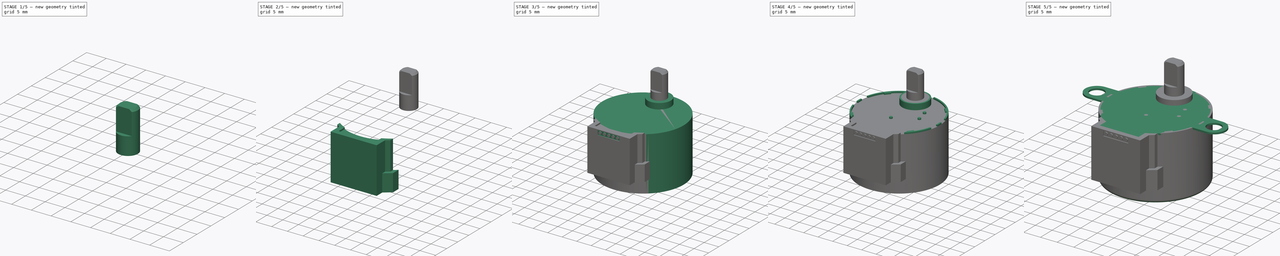
[diagram: build sequence overview — one tinted view per stage of 5, left to right]
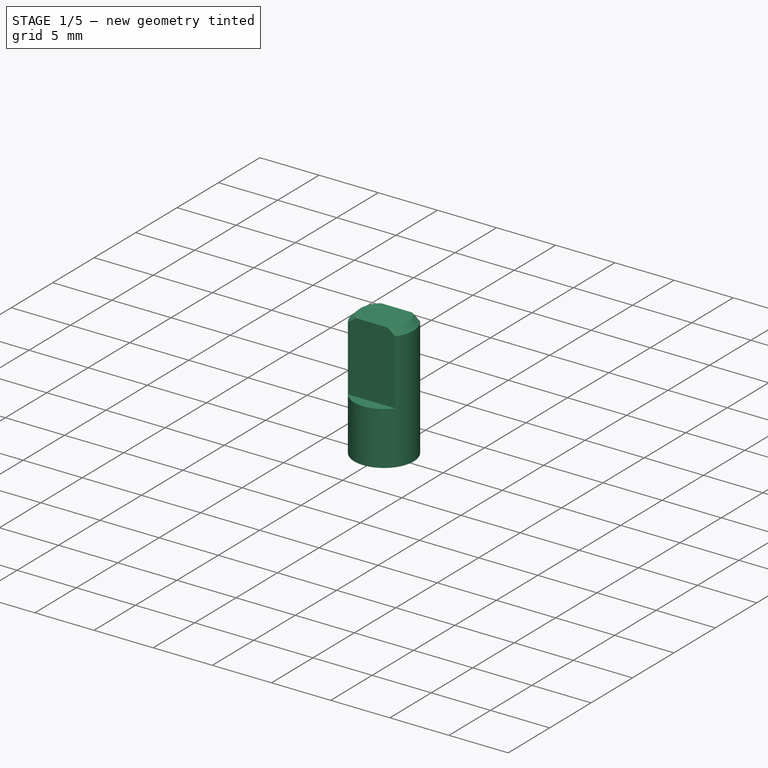
[diagram: stage 1 of 5 — iso view after this stage's code; geometry added in this stage tinted green]
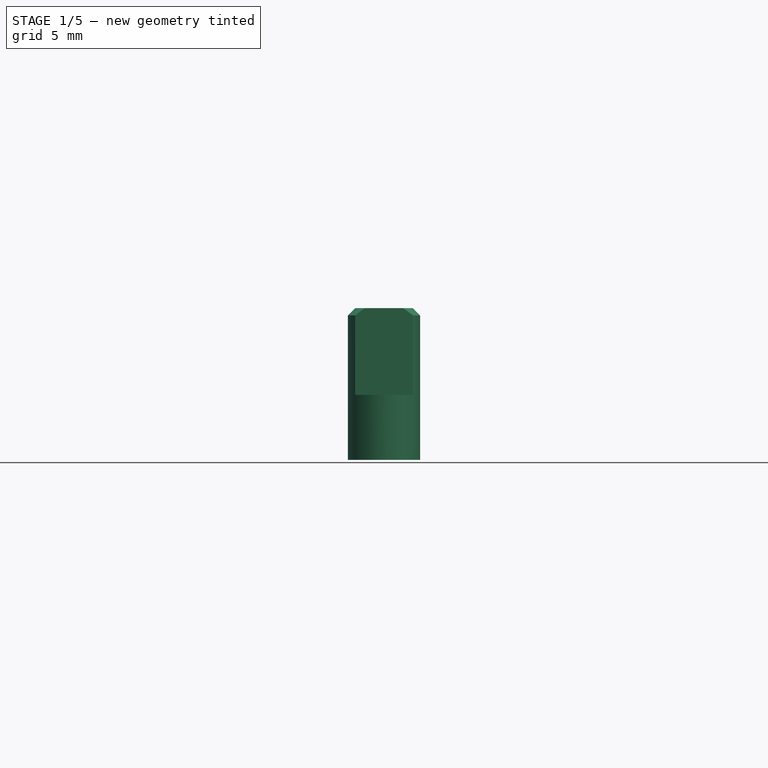
[diagram: stage 1 of 5 — front view after this stage's code; geometry added in this stage tinted green]
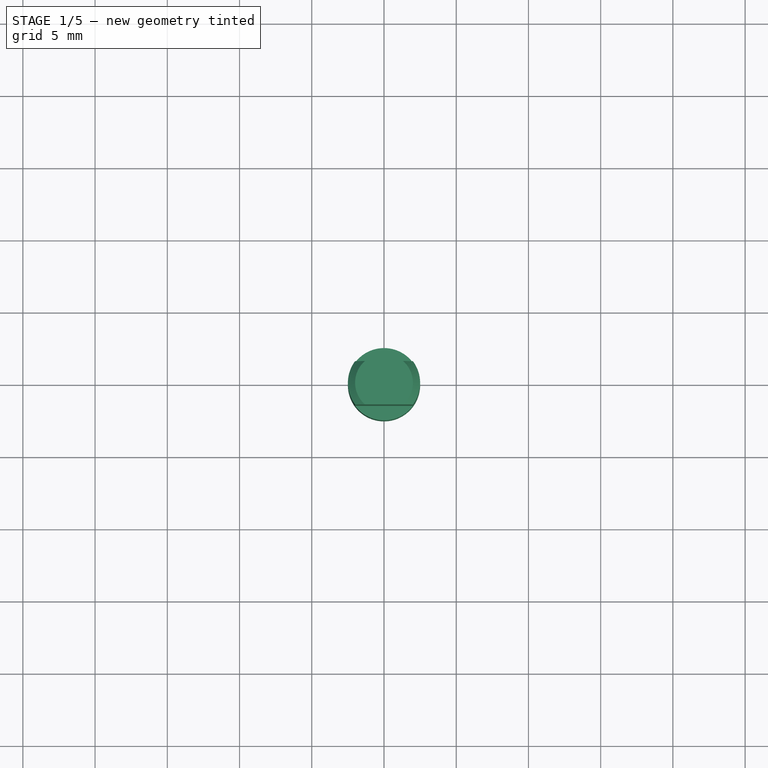
[diagram: stage 1 of 5 — top view after this stage's code; geometry added in this stage tinted green]
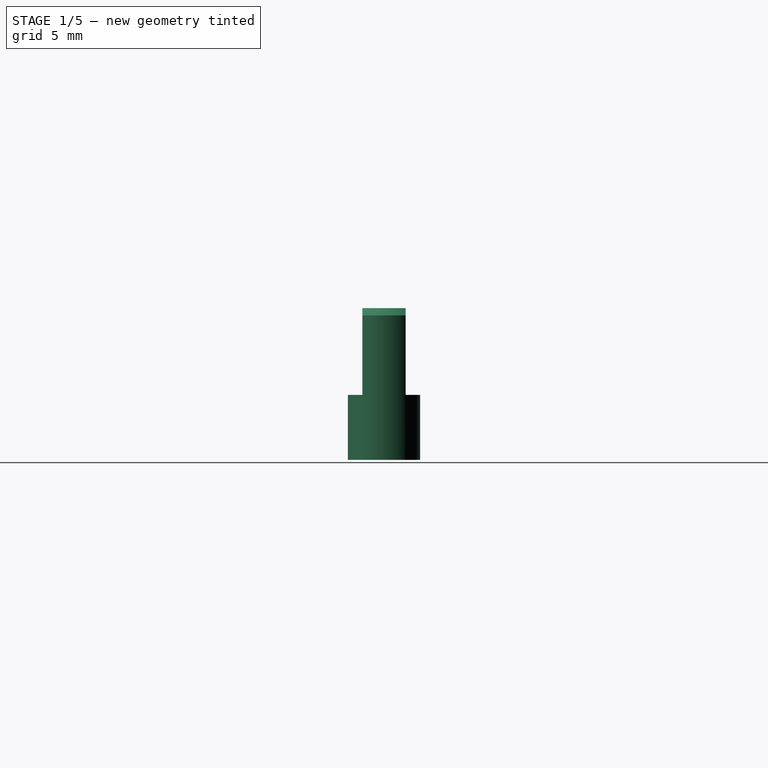
[diagram: stage 1 of 5 — right view after this stage's code; geometry added in this stage tinted green]
FCSTD DOCUMENT  (FreeCAD 0.20R27936 (Git))
Label: 28BYJ-48
License: All rights reserved
LicenseURL: http://en.wikipedia.org/wiki/All_rights_reserved
objects: Sketcher::SketchObject×13, PartDesign::Pad×8, Part::Part2DObjectPython×5, PartDesign::Body×5, PartDesign::Pocket×4, PartDesign::Fillet×1, PartDesign::Chamfer×1, Part::MultiFuse×1
note: 52 computed .brp shape members not serialized (recipe doc carries the construction recipe); baked Part::Feature solids carry a one-line shape summary decoded from their .brp

FEATURE [PartDesign::Body] Body003  label="Part 4"
  Group = -> [Clone2D003,Sketch008,Pad006,Sketch009,Pad007,Sketch010,Pocket001,Sketch011,Pocket002]
  Origin = -> Origin003
  Tip = -> Pocket002
FEATURE [Part::Part2DObjectPython] Clone2D004  label="Master Sketch (2D)004"  # Draft 2D object (typed FeaturePython)
  Fuse = false
  Objects = -> [Sketch]
  Scale = (1,1,1)
FEATURE [Sketcher::SketchObject] Sketch012
  ExternalGeometry = -> [Clone2D004]
  FullyConstrained = true
  MapMode = 5
  Support = -> [XY_Plane004]
  sketch-geometry (1):
    g0: Circle CenterX=0 CenterY=0 CenterZ=0 NormalX=0 NormalY=0 NormalZ=1 AngleXU=0 Radius=2.5
  constraints (2):
    c: Coincident(g0,g-3)
    c: Equal(g-3,g0)
FEATURE [PartDesign::Pad] Pad008
  Direction = (0,0,1)
  Length = 10.5
  Length2 = 10
  Profile = -> Sketch012
  ReferenceAxis = -> Sketch012 [N_Axis]
  Type = 0
FEATURE [Sketcher::SketchObject] Sketch013
  ExternalGeometry = -> [Pad008]
  FullyConstrained = true
  MapMode = 5
  Placement = pos=(0,0,10.5) rot=(0,0,1;0rad)
  Support = -> [Pad008]
  sketch-geometry (4):
    g0: LineSegment StartX=-2 StartY=1.5 StartZ=0 EndX=2 EndY=1.5 EndZ=0
    g1: LineSegment StartX=-2 StartY=-1.5 StartZ=0 EndX=2 EndY=-1.5 EndZ=0
    g2: ArcOfCircle CenterX=0 CenterY=0 CenterZ=0 NormalX=0 NormalY=0 NormalZ=1 AngleXU=0 Radius=2.5 StartAngle=0.643501 EndAngle=2.49809
    g3: ArcOfCircle CenterX=0 CenterY=0 CenterZ=0 NormalX=0 NormalY=0 NormalZ=1 AngleXU=0 Radius=2.5 StartAngle=3.78509 EndAngle=5.63968
  constraints (12):
    c: PointOnObject(g0,g-3)
    c: Horizontal(g0)
    c: PointOnObject(g1,g-3)
    c: Horizontal(g1)
    c: Equal(g1,g0)
    c: Coincident(g2,g-3)
    c: Coincident(g2,g0)
    c: Coincident(g2,g0)
    c: Coincident(g3,g2)
    c: Coincident(g3,g1)
    c: Coincident(g3,g1)
    c: DistanceY(g1,g0) = 3
FEATURE [PartDesign::Pocket] Pocket003
  BaseFeature = -> Pad008
  Direction = (0,0,-1)
  Length = 6
  Length2 = 5
  Profile = -> Sketch013
  ReferenceAxis = -> Sketch013 [N_Axis]
  Type = 0
FEATURE [PartDesign::Chamfer] Chamfer
  Angle = 45
  Base = -> Pocket003 [Edge7,Edge3,Edge11]
  BaseFeature = -> Pocket003
  ChamferType = 0
  FlipDirection = false
  Size = 0.5
  Size2 = 1
  SupportTransform = false
  UseAllEdges = false
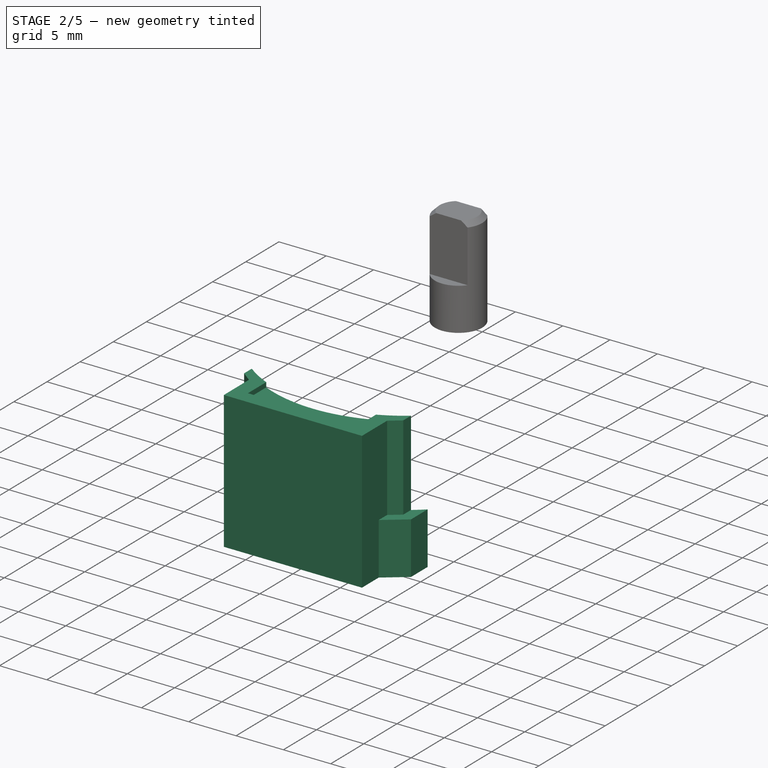
[diagram: stage 2 of 5 — iso view after this stage's code; geometry added in this stage tinted green]
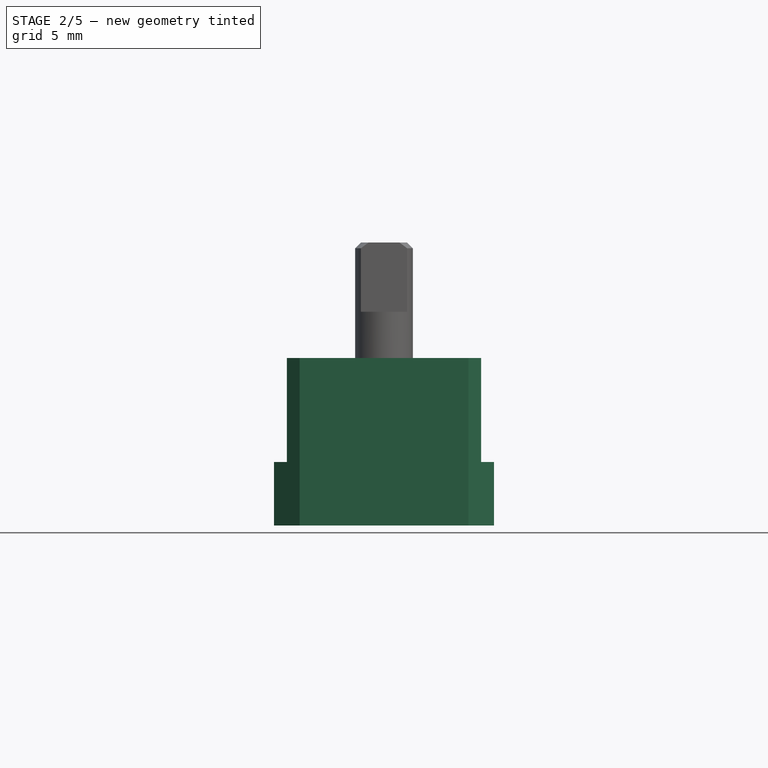
[diagram: stage 2 of 5 — front view after this stage's code; geometry added in this stage tinted green]
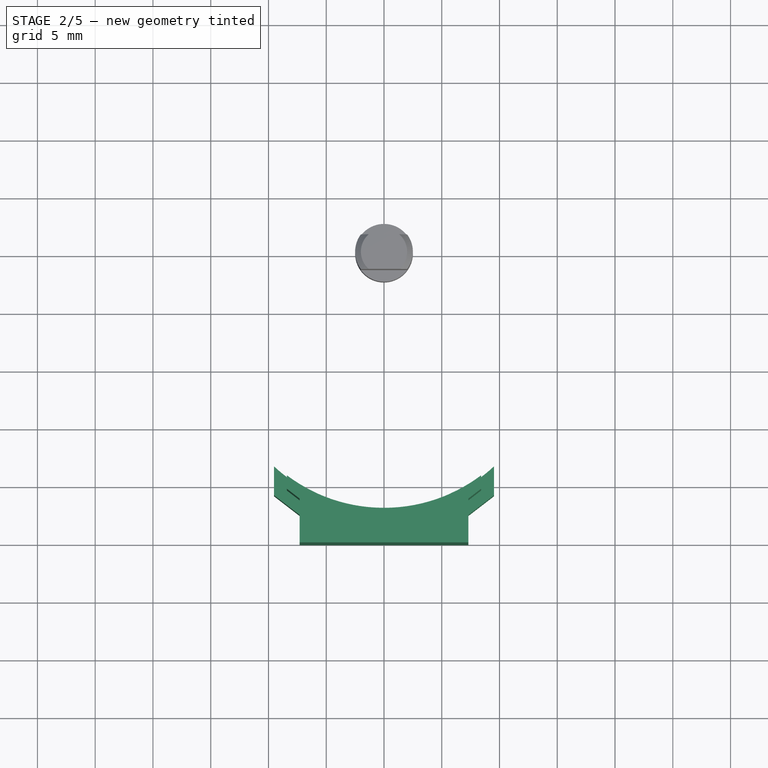
[diagram: stage 2 of 5 — top view after this stage's code; geometry added in this stage tinted green]
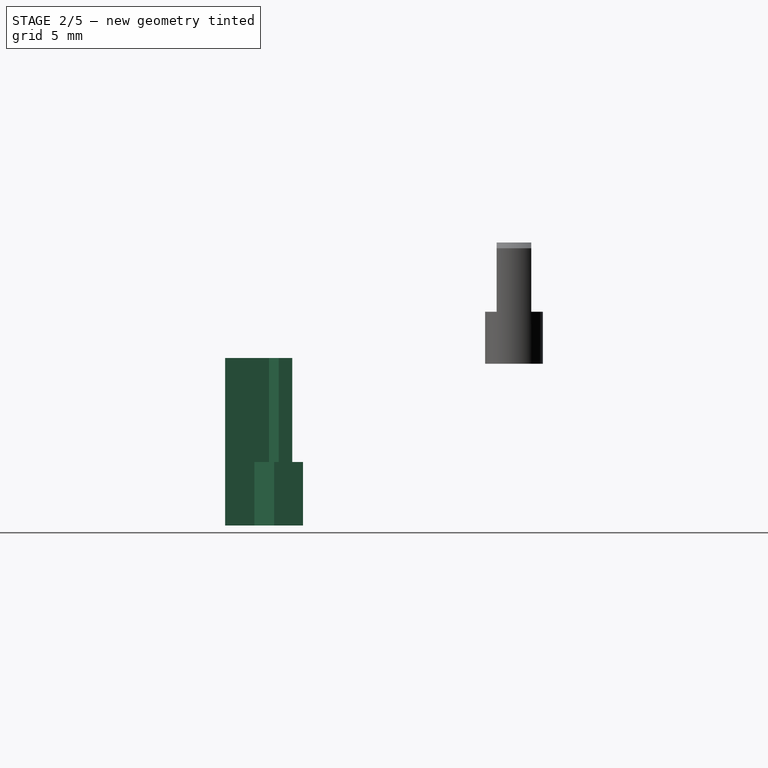
[diagram: stage 2 of 5 — right view after this stage's code; geometry added in this stage tinted green]
FEATURE [PartDesign::Body] Body002  label="Part 3"
  Group = -> [Clone2D002,Sketch007,Pad005]
  Origin = -> Origin002
  Tip = -> Pad005
FEATURE [Part::Part2DObjectPython] Clone2D003  label="Master Sketch (2D)003"  # Draft 2D object (typed FeaturePython)
  Fuse = false
  Objects = -> [Sketch]
  Scale = (1,1,1)
FEATURE [Sketcher::SketchObject] Sketch008
  ExternalGeometry = -> [Clone2D003]
  FullyConstrained = true
  MapMode = 5
  Support = -> [XY_Plane003]
  sketch-geometry (8):
    g0: LineSegment StartX=-9.51847 StartY=-18.2664 StartZ=0 EndX=-9.51847 EndY=-20.7664 EndZ=0
    g1: LineSegment StartX=-9.51847 StartY=-20.7664 StartZ=0 EndX=-7.3 EndY=-22.4731 EndZ=0
    g2: LineSegment StartX=-7.3 StartY=-22.4731 StartZ=0 EndX=-7.3 EndY=-25 EndZ=0
    g3: LineSegment StartX=-7.3 StartY=-25 StartZ=0 EndX=7.3 EndY=-25 EndZ=0
    g4: LineSegment StartX=7.3 StartY=-25 StartZ=0 EndX=7.3 EndY=-22.4731 EndZ=0
    g5: LineSegment StartX=7.3 StartY=-22.4731 StartZ=0 EndX=9.51847 EndY=-20.7664 EndZ=0
    g6: LineSegment StartX=9.51847 StartY=-20.7664 StartZ=0 EndX=9.51847 EndY=-18.2664 EndZ=0
    g7: ArcOfCircle CenterX=0 CenterY=-8 CenterZ=0 NormalX=0 NormalY=0 NormalZ=1 AngleXU=0 Radius=14 StartAngle=3.96478 EndAngle=5.46
  constraints (17):
    c: Coincident(g0,g-3)
    c: Coincident(g0,g-4)
    c: Coincident(g1,g0)
    c: Coincident(g1,g-4)
    c: Coincident(g2,g1)
    c: Coincident(g2,g-7)
    c: Coincident(g3,g2)
    c: Coincident(g3,g-8)
    c: Coincident(g4,g3)
    c: Coincident(g4,g-9)
    c: Coincident(g5,g4)
    c: Coincident(g5,g-10)
    c: Coincident(g6,g5)
    c: Coincident(g6,g-10)
    c: Coincident(g7,g-5)
    c: Coincident(g7,g0)
    c: Coincident(g7,g6)
FEATURE [PartDesign::Pad] Pad006
  Direction = (0,0,1)
  Length = 14
  Length2 = 10
  Profile = -> Sketch008
  ReferenceAxis = -> Sketch008 [N_Axis]
  Reversed = true
  Type = 0
FEATURE [Sketcher::SketchObject] Sketch009
  ExternalGeometry = -> [Clone2D003]
  FullyConstrained = true
  MapMode = 5
  Support = -> [XY_Plane003]
  sketch-geometry (12):
    g0: LineSegment StartX=-9.51847 StartY=-18.2664 StartZ=0 EndX=-9.51847 EndY=-20.7664 EndZ=0
    g1: LineSegment StartX=-9.51847 StartY=-20.7664 StartZ=0 EndX=-7.3 EndY=-22.4731 EndZ=0
    g2: LineSegment StartX=-7.3 StartY=-22.4731 StartZ=0 EndX=-7.3 EndY=-25 EndZ=0
    g3: LineSegment StartX=-7.3 StartY=-25 StartZ=0 EndX=7.3 EndY=-25 EndZ=0
    g4: LineSegment StartX=7.3 StartY=-25 StartZ=0 EndX=7.3 EndY=-22.4731 EndZ=0
    g5: LineSegment StartX=7.3 StartY=-22.4731 StartZ=0 EndX=9.51847 EndY=-20.7664 EndZ=0
    g6: LineSegment StartX=9.51847 StartY=-20.7664 StartZ=0 EndX=9.51847 EndY=-18.2664 EndZ=0
    g7: LineSegment StartX=5.8 StartY=-20.7421 StartZ=0 EndX=5.8 EndY=-23.5 EndZ=0
    g8: LineSegment StartX=5.8 StartY=-23.5 StartZ=0 EndX=-5.8 EndY=-23.5 EndZ=0
    g9: LineSegment StartX=-5.8 StartY=-23.5 StartZ=0 EndX=-5.8 EndY=-20.7421 EndZ=0
    g10: ArcOfCircle CenterX=0 CenterY=-8 CenterZ=0 NormalX=0 NormalY=0 NormalZ=1 AngleXU=0 Radius=14 StartAngle=3.96478 EndAngle=4.28523
    g11: ArcOfCircle CenterX=0 CenterY=-8 CenterZ=0 NormalX=0 NormalY=0 NormalZ=1 AngleXU=0 Radius=14 StartAngle=5.13955 EndAngle=5.46
  constraints (26):
    c: Coincident(g0,g-3)
    c: Coincident(g0,g-4)
    c: Coincident(g1,g0)
    c: Coincident(g1,g-4)
    c: Coincident(g2,g1)
    c: Coincident(g2,g-13)
    c: Coincident(g3,g2)
    c: Coincident(g3,g-12)
    c: Coincident(g4,g3)
    c: Coincident(g4,g-11)
    c: Coincident(g5,g4)
    c: Coincident(g5,g-11)
    c: Coincident(g6,g5)
    c: Coincident(g6,g-9)
    c: Coincident(g7,g-8)
    c: Coincident(g7,g-8)
    c: Coincident(g8,g7)
    c: Coincident(g8,g-7)
    c: Coincident(g9,g8)
    c: Coincident(g9,g-6)
    c: Coincident(g10,g-5)
    c: Coincident(g10,g9)
    c: Coincident(g10,g0)
    c: Coincident(g11,g10)
    c: Coincident(g11,g7)
    c: Coincident(g11,g6)
FEATURE [PartDesign::Pad] Pad007
  BaseFeature = -> Pad006
  Direction = (0,0,1)
  Length = 0.5
  Length2 = 10
  Profile = -> Sketch009
  ReferenceAxis = -> Sketch009 [N_Axis]
  Type = 0
FEATURE [Sketcher::SketchObject] Sketch010
  ExternalGeometry = -> [Clone2D003]
  FullyConstrained = true
  MapMode = 5
  Support = -> [XY_Plane003]
  sketch-geometry (12):
    g0: LineSegment StartX=-9.51847 StartY=-18.2664 StartZ=0 EndX=-9.51847 EndY=-20.7664 EndZ=0
    g1: LineSegment StartX=-9.51847 StartY=-20.7664 StartZ=0 EndX=-7.3 EndY=-22.4731 EndZ=0
    g2: LineSegment StartX=9.51847 StartY=-18.2664 StartZ=0 EndX=9.51847 EndY=-20.7664 EndZ=0
    g3: LineSegment StartX=9.51847 StartY=-20.7664 StartZ=0 EndX=7.3 EndY=-22.4731 EndZ=0
    g4: LineSegment StartX=7.3 StartY=-22.4731 StartZ=0 EndX=7.3 EndY=-21.2096 EndZ=0
    g5: LineSegment StartX=7.3 StartY=-21.2096 StartZ=0 EndX=8.40923 EndY=-20.3563 EndZ=0
    g6: LineSegment StartX=8.40923 StartY=-20.3563 StartZ=0 EndX=8.40923 EndY=-19.1931 EndZ=0
    g7: LineSegment StartX=-8.40923 StartY=-19.1931 StartZ=0 EndX=-8.40923 EndY=-20.3563 EndZ=0
    g8: LineSegment StartX=-8.40923 StartY=-20.3563 StartZ=0 EndX=-7.3 EndY=-21.2096 EndZ=0
    g9: LineSegment StartX=-7.3 StartY=-21.2096 StartZ=0 EndX=-7.3 EndY=-22.4731 EndZ=0
    g10: ArcOfCircle CenterX=2.24e-14 CenterY=-8 CenterZ=0 NormalX=0 NormalY=0 NormalZ=1 AngleXU=0 Radius=14 StartAngle=3.96478 EndAngle=4.06806
    g11: ArcOfCircle CenterX=2.24e-14 CenterY=-8 CenterZ=0 NormalX=0 NormalY=0 NormalZ=1 AngleXU=0 Radius=14 StartAngle=5.35671 EndAngle=5.46
  constraints (26):
    c: Coincident(g0,g-3)
    c: Coincident(g0,g-7)
    c: Coincident(g1,g0)
    c: Coincident(g1,g-7)
    c: Coincident(g2,g-13)
    c: Coincident(g2,g-13)
    c: Coincident(g3,g2)
    c: Coincident(g3,g-12)
    c: Coincident(g4,g3)
    c: Coincident(g4,g-11)
    c: Coincident(g5,g4)
    c: Coincident(g5,g-11)
    c: Coincident(g6,g5)
    c: Coincident(g6,g-10)
    c: Coincident(g7,g-5)
    c: Coincident(g7,g-6)
    c: Coincident(g8,g7)
    c: Coincident(g8,g-6)
    c: Coincident(g9,g8)
    c: Coincident(g9,g1)
    c: Coincident(g10,g-4)
    c: Coincident(g10,g7)
    c: Coincident(g10,g0)
    c: Coincident(g11,g10)
    c: Coincident(g11,g6)
    c: Coincident(g11,g2)
FEATURE [PartDesign::Pocket] Pocket001
  BaseFeature = -> Pad007
  Direction = (0,0,-1)
  Length = 17
  Length2 = 8
  Midplane = true
  Profile = -> Sketch010
  ReferenceAxis = -> Sketch010 [N_Axis]
  Type = 0
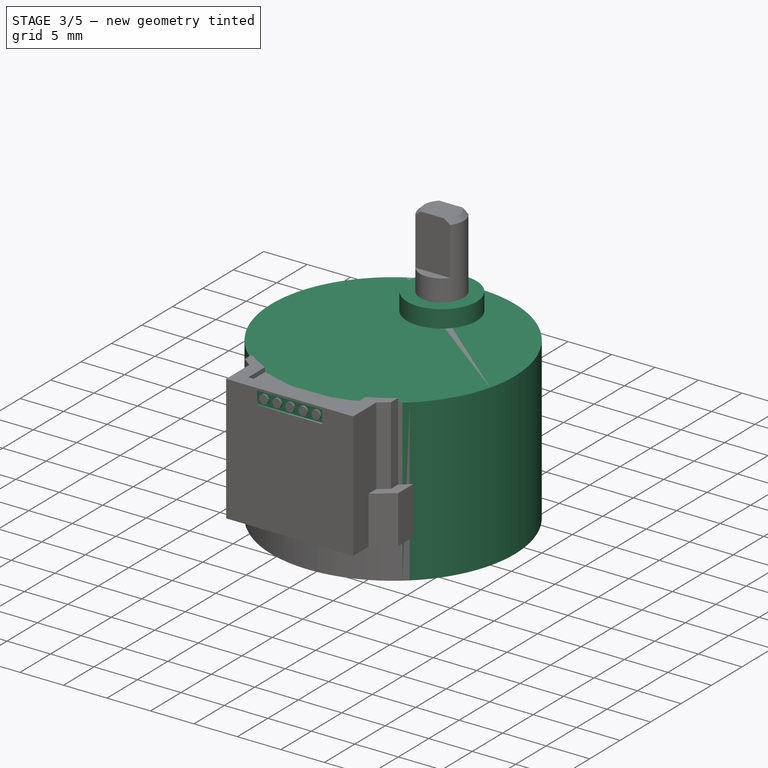
[diagram: stage 3 of 5 — iso view after this stage's code; geometry added in this stage tinted green]
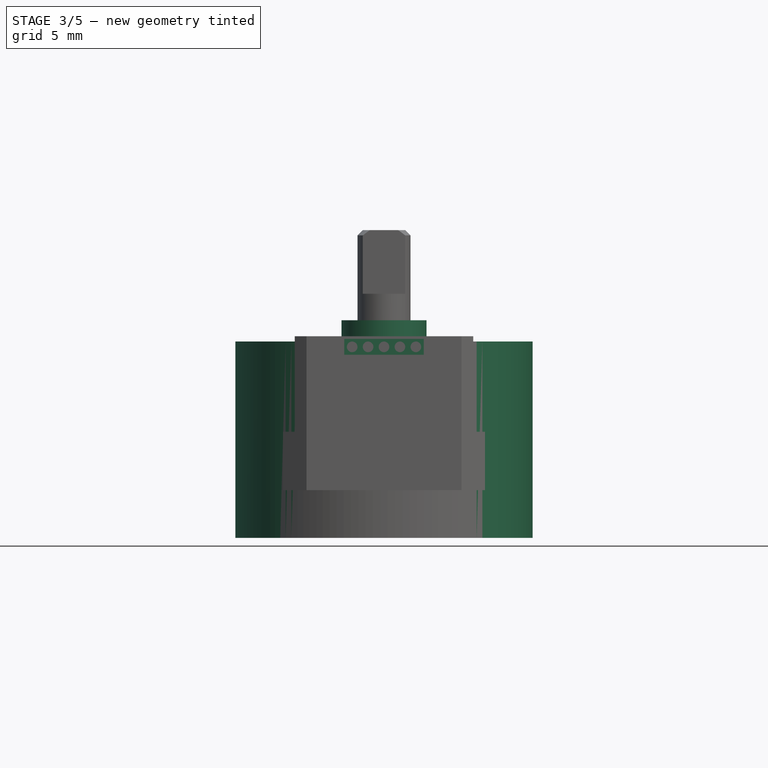
[diagram: stage 3 of 5 — front view after this stage's code; geometry added in this stage tinted green]
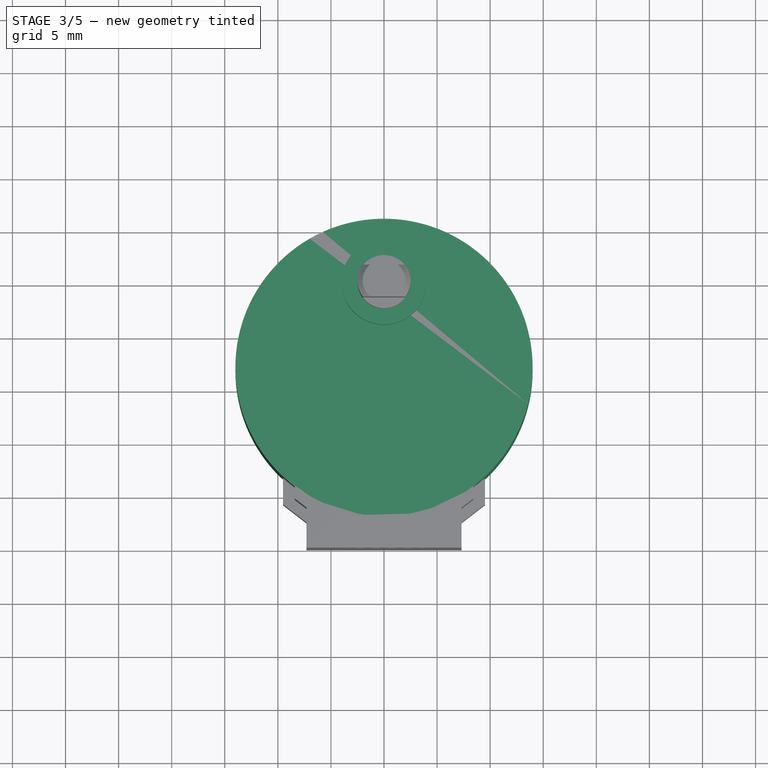
[diagram: stage 3 of 5 — top view after this stage's code; geometry added in this stage tinted green]
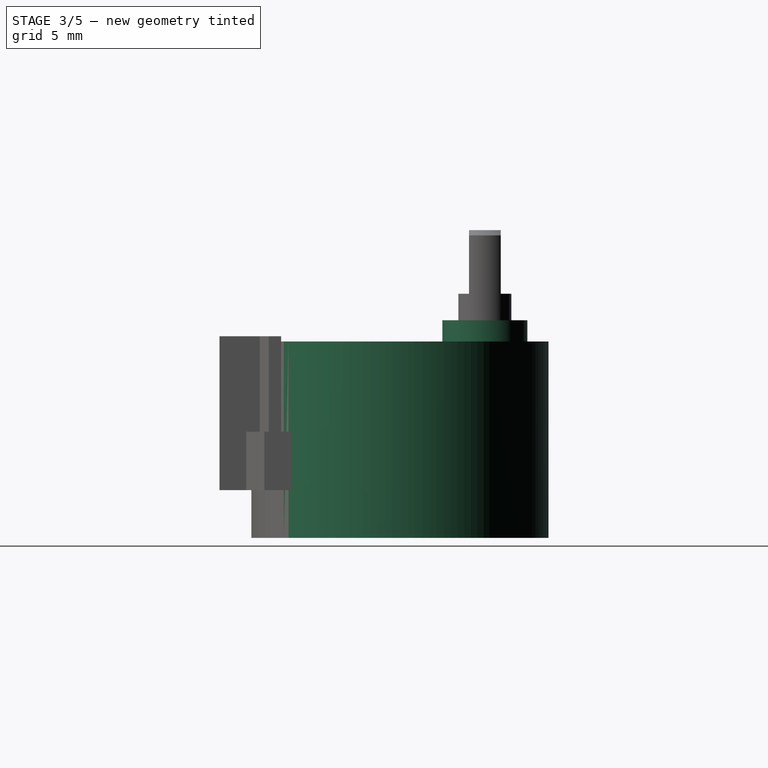
[diagram: stage 3 of 5 — right view after this stage's code; geometry added in this stage tinted green]
FEATURE [PartDesign::Body] Body  label="Part 1"
  Group = -> [Sketch001,Clone2D,Pad]
  Origin = -> Origin
  Tip = -> Pad
FEATURE [Part::Part2DObjectPython] Clone2D001  label="Master Sketch (2D)001"  # Draft 2D object (typed FeaturePython)
  Fuse = false
  Objects = -> [Sketch]
  Scale = (1,1,1)
FEATURE [Sketcher::SketchObject] Sketch002
  ExternalGeometry = -> [Clone2D001]
  FullyConstrained = true
  MapMode = 5
  Support = -> [XY_Plane001]
  sketch-geometry (1):
    g0: Circle CenterX=0 CenterY=-8 CenterZ=0 NormalX=0 NormalY=0 NormalZ=1 AngleXU=0 Radius=14
  constraints (2):
    c: Coincident(g0,g-3)
    c: Equal(g-3,g0)
FEATURE [PartDesign::Pad] Pad001
  Direction = (0,0,1)
  Length = 18.5
  Length2 = 10
  Profile = -> Sketch002
  ReferenceAxis = -> Sketch002 [N_Axis]
  Reversed = true
  Type = 0
FEATURE [PartDesign::Body] Body001  label="Part 2"
  Group = -> [Clone2D001,Sketch002,Pad001,Sketch003,Pad002,Sketch004,Pad003,Sketch006,Pocket,Fillet]
  Origin = -> Origin001
  Tip = -> Fillet
FEATURE [Part::Part2DObjectPython] Clone2D002  label="Master Sketch (2D)002"  # Draft 2D object (typed FeaturePython)
  Fuse = false
  Objects = -> [Sketch]
  Scale = (1,1,1)
FEATURE [Sketcher::SketchObject] Sketch007
  ExternalGeometry = -> [Clone2D002]
  FullyConstrained = true
  MapMode = 5
  Support = -> [XY_Plane002]
  sketch-geometry (2):
    g0: Circle CenterX=0 CenterY=0 CenterZ=0 NormalX=0 NormalY=0 NormalZ=1 AngleXU=0 Radius=4
    g1: Circle CenterX=0 CenterY=0 CenterZ=0 NormalX=0 NormalY=0 NormalZ=1 AngleXU=0 Radius=2.5
  constraints (4):
    c: Coincident(g1,g-4)
    c: Coincident(g0,g1)
    c: Equal(g-3,g1)
    c: Equal(g-4,g0)
FEATURE [PartDesign::Pad] Pad005
  Direction = (0,0,1)
  Length = 2
  Length2 = 10
  Profile = -> Sketch007
  ReferenceAxis = -> Sketch007 [N_Axis]
  Type = 0
FEATURE [Sketcher::SketchObject] Sketch011
  FullyConstrained = true
  MapMode = 5
  Placement = pos=(0,-25,0) rot=(1,0,0;1.5708rad)
  Support = -> [Pocket001]
  sketch-geometry (9):
    g0: LineSegment StartX=-3.75 StartY=0.25 StartZ=0 EndX=3.75 EndY=0.25 EndZ=0
    g1: LineSegment StartX=3.75 StartY=0.25 StartZ=0 EndX=3.75 EndY=-1.25 EndZ=0
    g2: LineSegment StartX=3.75 StartY=-1.25 StartZ=0 EndX=-3.75 EndY=-1.25 EndZ=0
    g3: LineSegment StartX=-3.75 StartY=-1.25 StartZ=0 EndX=-3.75 EndY=0.25 EndZ=0
    g4: Circle CenterX=0 CenterY=-0.5 CenterZ=0 NormalX=0 NormalY=0 NormalZ=1 AngleXU=0 Radius=0.5
    g5: Circle CenterX=-1.5 CenterY=-0.5 CenterZ=0 NormalX=0 NormalY=0 NormalZ=1 AngleXU=0 Radius=0.5
    g6: Circle CenterX=-3 CenterY=-0.5 CenterZ=0 NormalX=0 NormalY=0 NormalZ=1 AngleXU=0 Radius=0.5
    g7: Circle CenterX=1.5 CenterY=-0.5 CenterZ=0 NormalX=0 NormalY=0 NormalZ=1 AngleXU=0 Radius=0.5
    g8: Circle CenterX=3 CenterY=-0.5 CenterZ=0 NormalX=0 NormalY=0 NormalZ=1 AngleXU=0 Radius=0.5
  constraints (24):
    c: Coincident(g0,g1)
    c: Coincident(g1,g2)
    c: Coincident(g2,g3)
    c: Coincident(g3,g0)
    c: Horizontal(g2)
    c: Vertical(g1)
    c: Vertical(g3)
    c: DistanceX(g2,g2) = 7.5
    c: DistanceY(g1,g1) = 1.5
    c: Symmetric(g0,g0,g-2)
    c: DistanceY(g-1,g0) = 0.25
    c: PointOnObject(g4,g-2)
    c: Diameter(g4) = 1
    c: PointOnObject(g-1,g4)
    c: Horizontal(g6,g5)
    c: Horizontal(g5,g4)
    c: Equal(g6,g5)
    c: Equal(g5,g4)
    c: Equal(g4,g7)
    c: Equal(g7,g8)
    c: Symmetric(g8,g6,g-2)
    c: Symmetric(g5,g7,g-2)
    c: DistanceX(g4,g7) = 1.5
    c: DistanceX(g7,g8) = 1.5
FEATURE [PartDesign::Pocket] Pocket002
  BaseFeature = -> Pocket001
  Direction = (0,1,-2e-16)
  Length = 0.25
  Length2 = 5
  Profile = -> Sketch011
  ReferenceAxis = -> Sketch011 [N_Axis]
  Type = 0
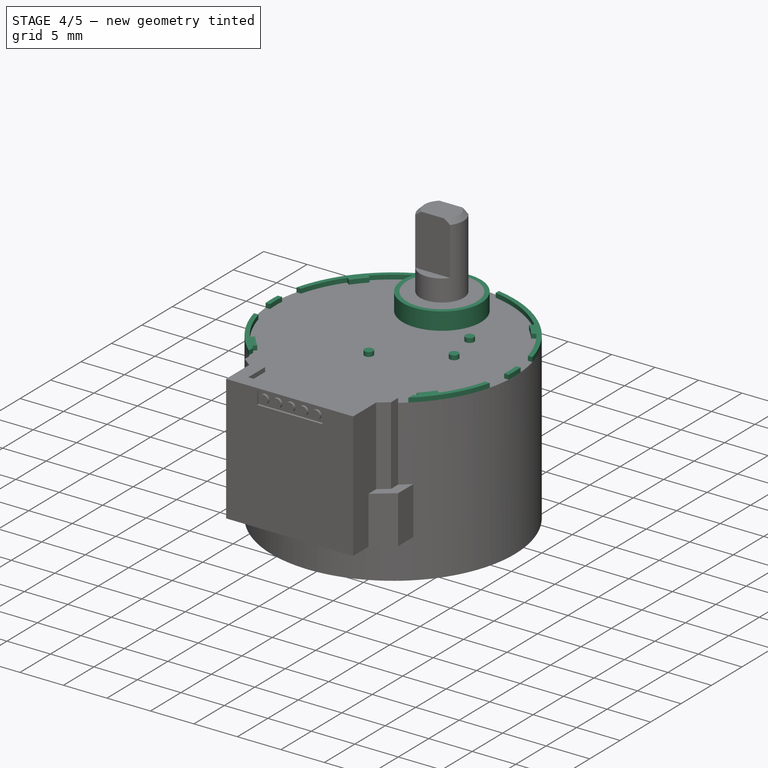
[diagram: stage 4 of 5 — iso view after this stage's code; geometry added in this stage tinted green]
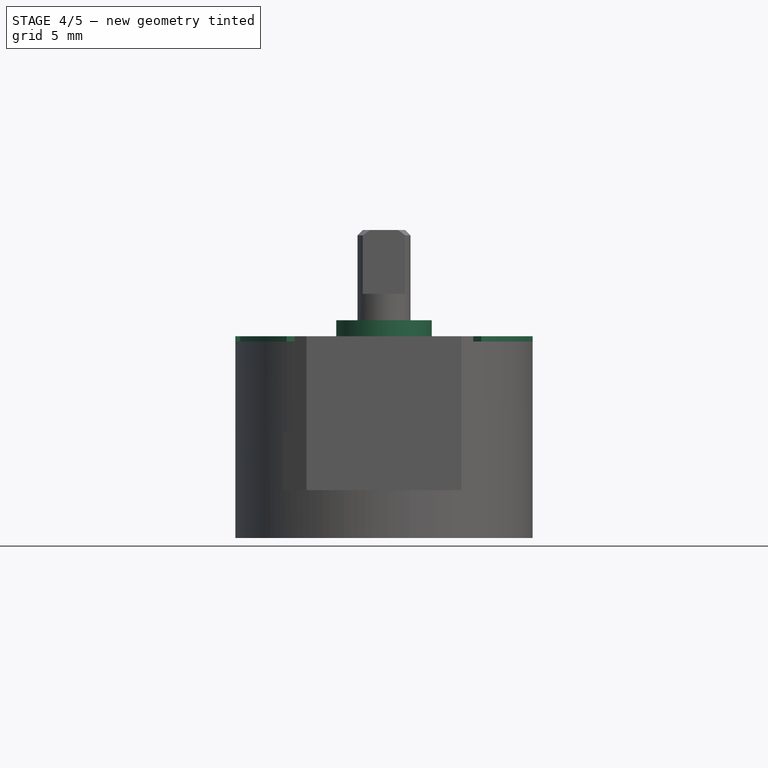
[diagram: stage 4 of 5 — front view after this stage's code; geometry added in this stage tinted green]
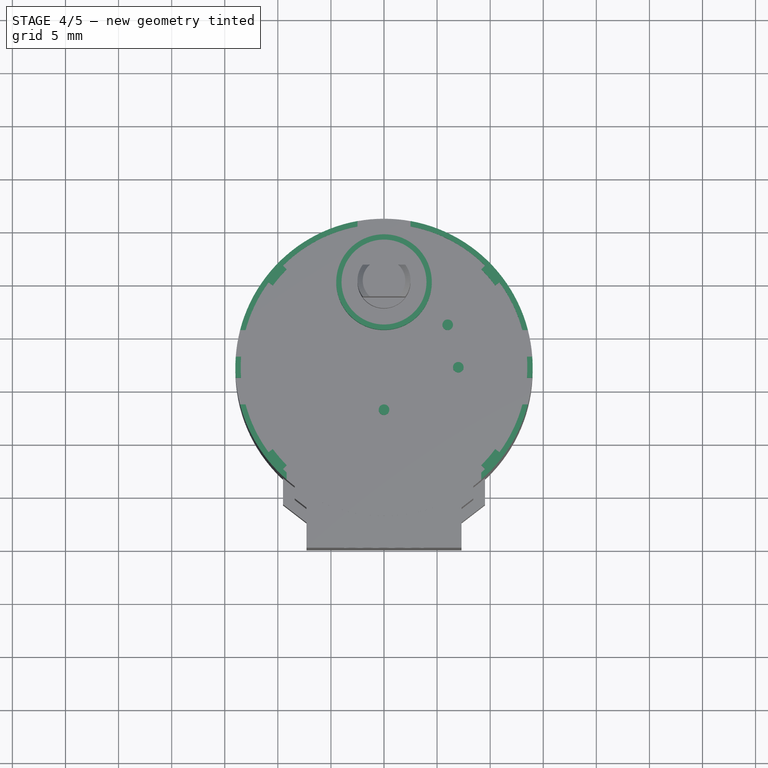
[diagram: stage 4 of 5 — top view after this stage's code; geometry added in this stage tinted green]
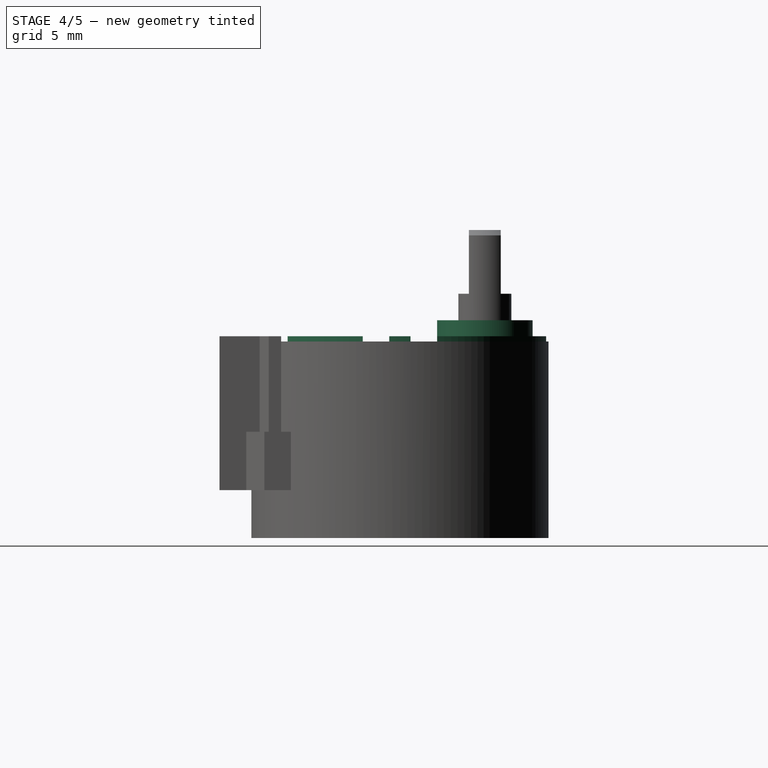
[diagram: stage 4 of 5 — right view after this stage's code; geometry added in this stage tinted green]
FEATURE [Sketcher::SketchObject] Sketch003
  ExternalGeometry = -> [Clone2D001]
  FullyConstrained = true
  MapMode = 5
  Support = -> [XY_Plane001]
  sketch-geometry (43):
    g0: Circle CenterX=0 CenterY=-12 CenterZ=0 NormalX=0 NormalY=0 NormalZ=1 AngleXU=0 Radius=0.5
    g1: Circle CenterX=7 CenterY=-8 CenterZ=0 NormalX=0 NormalY=0 NormalZ=1 AngleXU=0 Radius=0.5
    g2: Circle CenterX=6 CenterY=-4 CenterZ=0 NormalX=0 NormalY=0 NormalZ=1 AngleXU=0 Radius=0.5
    g3: ArcOfCircle CenterX=0 CenterY=-8 CenterZ=0 NormalX=0 NormalY=0 NormalZ=1 AngleXU=0 Radius=13.5 StartAngle=2.50732 EndAngle=2.87934
    g4: ArcOfCircle CenterX=0 CenterY=-8 CenterZ=0 NormalX=0 NormalY=0 NormalZ=1 AngleXU=0 Radius=13 StartAngle=2.35332 EndAngle=2.50732
    g5: ArcOfCircle CenterX=0 CenterY=-8 CenterZ=0 NormalX=0 NormalY=0 NormalZ=1 AngleXU=0 Radius=13.5 StartAngle=1.75706 EndAngle=2.35332
    g6: LineSegment StartX=-13.0384 StartY=-4.5 StartZ=0 EndX=-13.5554 EndY=-4.5 EndZ=0
    g7: ArcOfCircle CenterX=0 CenterY=-8 CenterZ=0 NormalX=0 NormalY=0 NormalZ=1 AngleXU=0 Radius=14 StartAngle=1.75033 EndAngle=2.88891
    g8: LineSegment StartX=-10.8743 StartY=1.8e-15 StartZ=0 EndX=-10.4715 EndY=-0.296296 EndZ=0
    g9: LineSegment StartX=-9.16593 StartY=1.21877 StartZ=0 EndX=-9.51847 EndY=1.57333 EndZ=0
    g10: LineSegment StartX=-2.5 StartY=5.2665 StartZ=0 EndX=-2.5 EndY=5.77498 EndZ=0
    g11: LineSegment StartX=-13.9642 StartY=-7 StartZ=0 EndX=-13.4629 EndY=-7 EndZ=0
    g12: LineSegment StartX=-13.9642 StartY=-9 StartZ=0 EndX=-13.4629 EndY=-9 EndZ=0
    g13: ArcOfCircle CenterX=0 CenterY=-8 CenterZ=0 NormalX=0 NormalY=0 NormalZ=1 AngleXU=0 Radius=13.5 StartAngle=3.06745 EndAngle=3.21573
    g14: ArcOfCircle CenterX=0 CenterY=-8 CenterZ=0 NormalX=0 NormalY=0 NormalZ=1 AngleXU=0 Radius=14 StartAngle=3.0701 EndAngle=3.21308
    g15: LineSegment StartX=-9.16593 StartY=-18.5823 StartZ=0 EndX=-9.16593 EndY=-17.9114 EndZ=0
    g16: ArcOfCircle CenterX=0 CenterY=-8 CenterZ=0 NormalX=0 NormalY=0 NormalZ=1 AngleXU=0 Radius=13.5 StartAngle=3.92986 EndAngle=3.96605
    g17: LineSegment StartX=-9.51847 StartY=-17.5733 StartZ=0 EndX=-9.16593 EndY=-17.2188 EndZ=0
    g18: ArcOfCircle CenterX=0 CenterY=-8 CenterZ=0 NormalX=0 NormalY=0 NormalZ=1 AngleXU=0 Radius=13 StartAngle=3.77587 EndAngle=3.92986
    g19: LineSegment StartX=-10.4715 StartY=-15.7037 StartZ=0 EndX=-10.8743 EndY=-16 EndZ=0
    g20: ArcOfCircle CenterX=0 CenterY=-8 CenterZ=0 NormalX=0 NormalY=0 NormalZ=1 AngleXU=0 Radius=13.5 StartAngle=3.40385 EndAngle=3.77587
    g21: LineSegment StartX=-13.0384 StartY=-11.5 StartZ=0 EndX=-13.5554 EndY=-11.5 EndZ=0
    g22: ArcOfCircle CenterX=0 CenterY=-8 CenterZ=0 NormalX=0 NormalY=0 NormalZ=1 AngleXU=0 Radius=14 StartAngle=3.39427 EndAngle=3.99859
    g23: LineSegment StartX=2.5 StartY=5.77498 StartZ=0 EndX=2.5 EndY=5.2665 EndZ=0
    g24: LineSegment StartX=9.16593 StartY=1.21877 StartZ=0 EndX=9.51847 EndY=1.57333 EndZ=0
    g25: LineSegment StartX=10.4715 StartY=-0.296296 StartZ=0 EndX=10.8743 EndY=0 EndZ=0
    g26: LineSegment StartX=13.0384 StartY=-4.5 StartZ=0 EndX=13.5554 EndY=-4.5 EndZ=0
    g27: LineSegment StartX=13.0384 StartY=-11.5 StartZ=0 EndX=13.5554 EndY=-11.5 EndZ=0
    g28: ArcOfCircle CenterX=0 CenterY=-8 CenterZ=0 NormalX=0 NormalY=0 NormalZ=1 AngleXU=0 Radius=14 StartAngle=0.25268 EndAngle=1.39126
    g29: ArcOfCircle CenterX=0 CenterY=-8 CenterZ=0 NormalX=0 NormalY=0 NormalZ=1 AngleXU=0 Radius=13.5 StartAngle=0.788272 EndAngle=1.38454
    g30: ArcOfCircle CenterX=0 CenterY=-8 CenterZ=0 NormalX=0 NormalY=0 NormalZ=1 AngleXU=0 Radius=13.5 StartAngle=0.262255 EndAngle=0.634274
    g31: ArcOfCircle CenterX=0 CenterY=-8 CenterZ=0 NormalX=0 NormalY=0 NormalZ=1 AngleXU=0 Radius=13 StartAngle=0.634274 EndAngle=0.788272
    g32: ArcOfCircle CenterX=0 CenterY=-8 CenterZ=0 NormalX=0 NormalY=0 NormalZ=1 AngleXU=0 Radius=13.5 StartAngle=6.20904 EndAngle=6.35733
    g33: ArcOfCircle CenterX=0 CenterY=-8 CenterZ=0 NormalX=0 NormalY=0 NormalZ=1 AngleXU=0 Radius=14 StartAngle=6.2117 EndAngle=6.35467
    g34: LineSegment StartX=13.4629 StartY=-7 StartZ=0 EndX=13.9642 EndY=-7 EndZ=0
    g35: LineSegment StartX=13.4629 StartY=-9 StartZ=0 EndX=13.9642 EndY=-9 EndZ=0
    g36: ArcOfCircle CenterX=0 CenterY=-8 CenterZ=0 NormalX=0 NormalY=0 NormalZ=1 AngleXU=0 Radius=14 StartAngle=5.42619 EndAngle=6.03051
    g37: ArcOfCircle CenterX=0 CenterY=-8 CenterZ=0 NormalX=0 NormalY=0 NormalZ=1 AngleXU=0 Radius=13.5 StartAngle=5.64891 EndAngle=6.02093
    g38: ArcOfCircle CenterX=0 CenterY=-8 CenterZ=0 NormalX=0 NormalY=0 NormalZ=1 AngleXU=0 Radius=13.5 StartAngle=5.45873 EndAngle=5.49491
    g39: ArcOfCircle CenterX=0 CenterY=-8 CenterZ=0 NormalX=0 NormalY=0 NormalZ=1 AngleXU=0 Radius=13 StartAngle=5.49491 EndAngle=5.64891
    g40: LineSegment StartX=10.4715 StartY=-15.7037 StartZ=0 EndX=10.8743 EndY=-16 EndZ=0
    g41: LineSegment StartX=9.16593 StartY=-17.2188 StartZ=0 EndX=9.51847 EndY=-17.5733 EndZ=0
    g42: LineSegment StartX=9.16593 StartY=-17.9114 StartZ=0 EndX=9.16593 EndY=-18.5823 EndZ=0
  constraints (110):
    c: Coincident(g0,g-5)
    c: Coincident(g1,g-4)
    c: Coincident(g2,g-3)
    c: Equal(g-3,g2)
    c: Equal(g-4,g1)
    c: Equal(g-5,g0)
    c: Coincident(g3,g-8)
    c: Coincident(g3,g-15)
    c: Coincident(g3,g-14)
    c: PointOnObject(g4,g-2)
    c: Coincident(g4,g-14)
    c: Coincident(g4,g-13)
    c: Coincident(g5,g3)
    c: Coincident(g5,g-13)
    c: Coincident(g5,g-9)
    c: Coincident(g6,g3)
    c: PointOnObject(g6,g-6)
    c: Horizontal(g6)
    c: Coincident(g7,g3)
    c: Coincident(g7,g6)
    c: Coincident(g7,g-9)
    c: Coincident(g8,g3)
    c: Coincident(g8,g4)
    c: Coincident(g9,g4)
    c: Coincident(g9,g5)
    c: Coincident(g10,g5)
    c: Coincident(g10,g7)
    c: Coincident(g11,g-16)
    c: Coincident(g11,g-16)
    c: Coincident(g12,g-17)
    c: Coincident(g12,g-17)
    c: Coincident(g13,g3)
    c: Coincident(g13,g12)
    c: Coincident(g13,g11)
    c: Coincident(g14,g3)
    c: Coincident(g14,g11)
    c: Coincident(g14,g12)
    c: Coincident(g15,g-21)
    c: Coincident(g15,g-21)
    c: Coincident(g16,g3)
    c: Coincident(g16,g15)
    c: Coincident(g16,g-20)
    c: Coincident(g17,g16)
    c: Coincident(g17,g-20)
    c: Coincident(g18,g3)
    c: Coincident(g18,g17)
    c: Coincident(g18,g-19)
    c: Coincident(g19,g18)
    c: Coincident(g19,g-19)
    c: Coincident(g20,g3)
    c: Coincident(g20,g19)
    c: Coincident(g20,g-18)
    c: Coincident(g21,g20)
    c: PointOnObject(g21,g-6)
    c: Horizontal(g21)
    c: Coincident(g22,g3)
    c: Coincident(g22,g21)
    c: Coincident(g22,g15)
    c: Coincident(g23,g-10)
    c: Coincident(g23,g-10)
    c: Coincident(g24,g-11)
    c: Coincident(g24,g-11)
    c: Coincident(g25,g-12)
    c: Coincident(g25,g-12)
    c: Coincident(g26,g-28)
    c: PointOnObject(g26,g-6)
    c: Horizontal(g26)
    c: Coincident(g27,g-25)
    c: PointOnObject(g27,g-6)
    c: Horizontal(g27)
    c: Coincident(g28,g3)
    c: Coincident(g28,g23)
    c: Coincident(g28,g26)
    c: Coincident(g29,g3)
    c: Coincident(g29,g23)
    c: Coincident(g29,g24)
    c: Coincident(g30,g3)
    c: Coincident(g30,g25)
    c: Coincident(g30,g26)
    c: Coincident(g31,g3)
    c: Coincident(g31,g25)
    c: Coincident(g31,g24)
    c: Coincident(g32,g3)
    c: Coincident(g32,g-26)
    c: Coincident(g32,g-27)
    c: Coincident(g33,g3)
    c: Coincident(g33,g-26)
    c: Coincident(g33,g-27)
    c: Coincident(g34,g32)
    c: Coincident(g34,g33)
    c: Coincident(g35,g32)
    c: Coincident(g35,g33)
    c: Coincident(g36,g3)
    c: Coincident(g36,g27)
    c: Coincident(g36,g-22)
    c: Coincident(g37,g3)
    c: Coincident(g37,g27)
    c: Coincident(g37,g-24)
    c: Coincident(g38,g3)
    c: Coincident(g38,g-22)
    c: Coincident(g38,g-23)
    c: Coincident(g39,g3)
    c: Coincident(g39,g-23)
    c: Coincident(g39,g-24)
    c: Coincident(g40,g39)
    c: Coincident(g40,g37)
    c: Coincident(g41,g39)
    c: Coincident(g41,g38)
    c: Coincident(g42,g38)
    c: Coincident(g42,g36)
FEATURE [PartDesign::Pad] Pad002
  BaseFeature = -> Pad001
  Direction = (0,0,1)
  Length = 0.5
  Length2 = 10
  Profile = -> Sketch003
  ReferenceAxis = -> Sketch003 [N_Axis]
  Type = 0
FEATURE [Sketcher::SketchObject] Sketch004
  ExternalGeometry = -> [Clone2D001]
  FullyConstrained = true
  MapMode = 5
  Support = -> [XY_Plane001]
  sketch-geometry (2):
    g0: Circle CenterX=0 CenterY=0 CenterZ=0 NormalX=0 NormalY=0 NormalZ=1 AngleXU=0 Radius=4.5
    g1: Circle CenterX=0 CenterY=0 CenterZ=0 NormalX=0 NormalY=0 NormalZ=1 AngleXU=0 Radius=4
  constraints (4):
    c: Coincident(g0,g-4)
    c: Coincident(g1,g0)
    c: Equal(g1,g-4)
    c: Equal(g-3,g0)
FEATURE [PartDesign::Pad] Pad003
  BaseFeature = -> Pad002
  Direction = (0,0,1)
  Length = 2
  Length2 = 10
  Profile = -> Sketch004
  ReferenceAxis = -> Sketch004 [N_Axis]
  Type = 0
FEATURE [Sketcher::SketchObject] Sketch006
  FullyConstrained = false
  MapMode = 5
  Placement = pos=(0,0,10.5) rot=(0,0,1;0rad)
  sketch-geometry (4):
    g0: LineSegment StartX=-2 StartY=1.5 StartZ=0 EndX=2 EndY=1.5 EndZ=0
    g1: LineSegment StartX=-2 StartY=-1.5 StartZ=0 EndX=2 EndY=-1.5 EndZ=0
    g2: ArcOfCircle CenterX=0 CenterY=0 CenterZ=0 NormalX=0 NormalY=0 NormalZ=1 AngleXU=0 Radius=2.5 StartAngle=0.643501 EndAngle=2.49809
    g3: ArcOfCircle CenterX=0 CenterY=0 CenterZ=0 NormalX=0 NormalY=0 NormalZ=1 AngleXU=0 Radius=2.5 StartAngle=3.78509 EndAngle=5.63968
  constraints (8):
    c: Horizontal(g0)
    c: Horizontal(g1)
    c: DistanceY(g1,g0) = 3
    c: Coincident(g2,g0)
    c: Coincident(g2,g0)
    c: Coincident(g3,g2)
    c: Coincident(g3,g1)
    c: Coincident(g3,g1)
FEATURE [PartDesign::Pocket] Pocket
  BaseFeature = -> Pad003
  Direction = (0,0,-1)
  Length = 6
  Length2 = 5
  Profile = -> Sketch006
  ReferenceAxis = -> Sketch006 [N_Axis]
  Type = 0
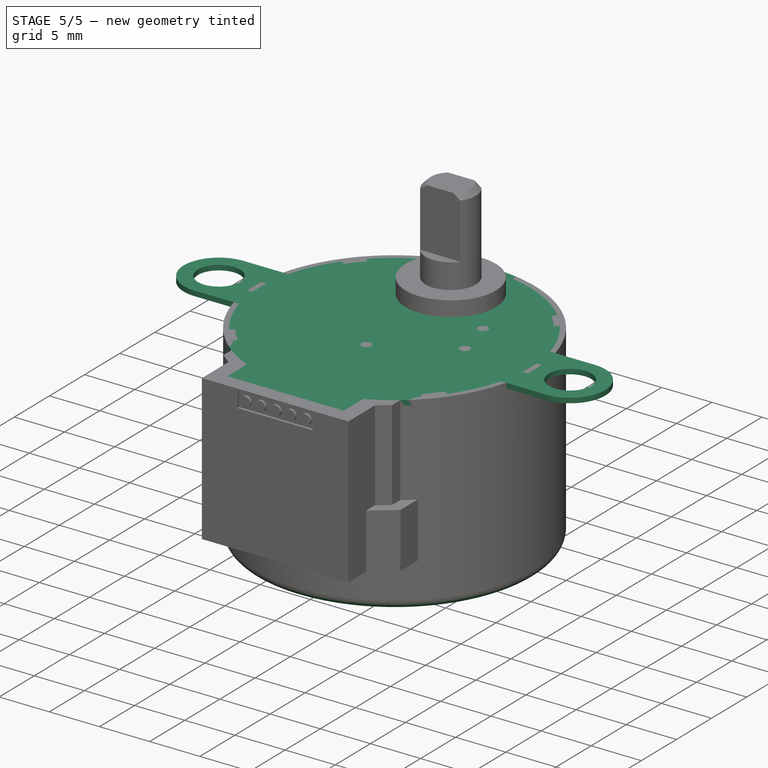
[diagram: stage 5 of 5 — iso view after this stage's code; geometry added in this stage tinted green]
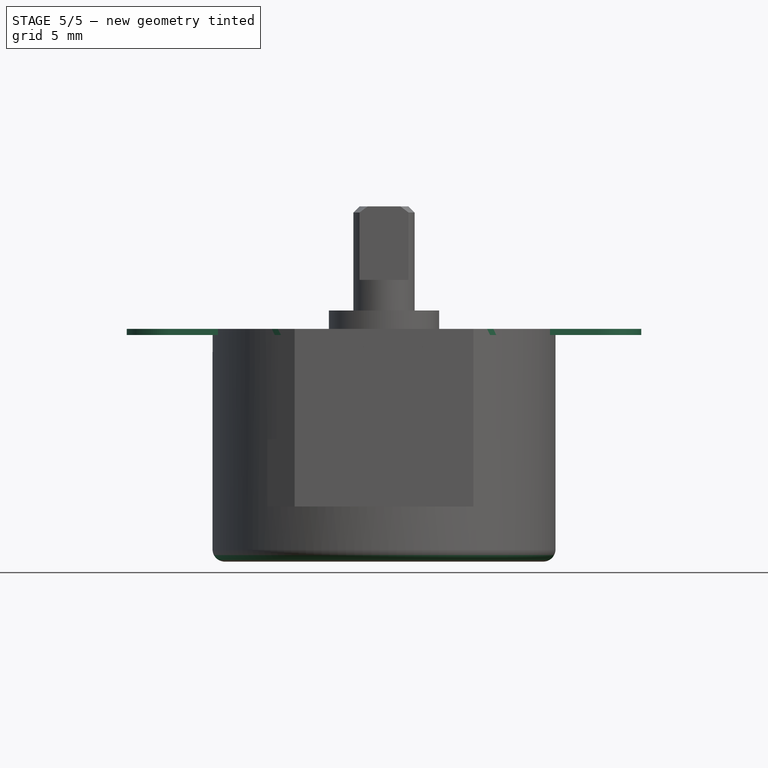
[diagram: stage 5 of 5 — front view after this stage's code; geometry added in this stage tinted green]
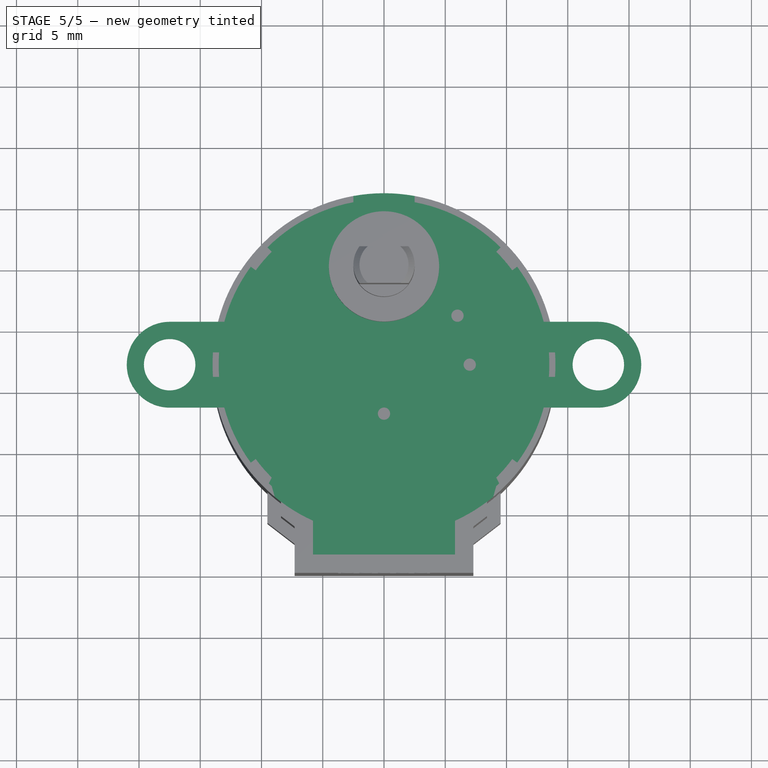
[diagram: stage 5 of 5 — top view after this stage's code; geometry added in this stage tinted green]
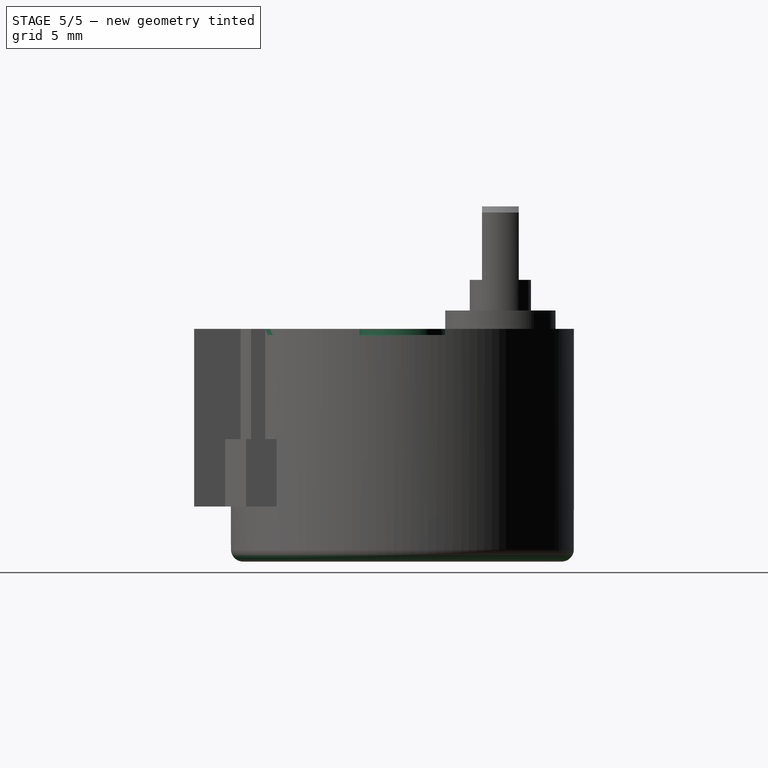
[diagram: stage 5 of 5 — right view after this stage's code; geometry added in this stage tinted green]
FEATURE [Sketcher::SketchObject] Sketch  label="Master Sketch"
  FullyConstrained = true
  MapMode = 5
  sketch-geometry (53):
    g0: Circle CenterX=0 CenterY=0 CenterZ=0 NormalX=0 NormalY=0 NormalZ=1 AngleXU=0 Radius=2.5
    g1: Circle CenterX=0 CenterY=0 CenterZ=0 NormalX=0 NormalY=0 NormalZ=1 AngleXU=0 Radius=4
    g2: Circle CenterX=0 CenterY=0 CenterZ=0 NormalX=0 NormalY=0 NormalZ=1 AngleXU=0 Radius=4.5
    g3: Circle CenterX=0 CenterY=-8 CenterZ=0 NormalX=0 NormalY=0 NormalZ=1 AngleXU=0 Radius=14
    g4: Circle CenterX=-17.5 CenterY=-8 CenterZ=0 NormalX=0 NormalY=0 NormalZ=1 AngleXU=0 Radius=2.1
    g5: Circle CenterX=17.5 CenterY=-8 CenterZ=0 NormalX=0 NormalY=0 NormalZ=1 AngleXU=0 Radius=2.1
    g6: Circle CenterX=17.5 CenterY=-8 CenterZ=0 NormalX=0 NormalY=0 NormalZ=1 AngleXU=0 Radius=3.5
    g7: LineSegment StartX=17.5 StartY=-4.5 StartZ=0 EndX=13.0384 EndY=-4.5 EndZ=0
    g8: LineSegment StartX=17.5 StartY=-11.5 StartZ=0 EndX=13.0384 EndY=-11.5 EndZ=0
    g9: Circle CenterX=-17.5 CenterY=-8 CenterZ=0 NormalX=0 NormalY=0 NormalZ=1 AngleXU=0 Radius=3.5
    g10: LineSegment StartX=-17.5 StartY=-4.5 StartZ=0 EndX=-13.0384 EndY=-4.5 EndZ=0
    g11: LineSegment StartX=-17.5 StartY=-11.5 StartZ=0 EndX=-13.0384 EndY=-11.5 EndZ=0
    g12: Circle CenterX=0 CenterY=-8 CenterZ=0 NormalX=0 NormalY=0 NormalZ=1 AngleXU=0 Radius=13.5
    g13: Circle CenterX=0 CenterY=-12 CenterZ=0 NormalX=0 NormalY=0 NormalZ=1 AngleXU=0 Radius=0.5
    g14: Circle CenterX=7 CenterY=-8 CenterZ=0 NormalX=0 NormalY=0 NormalZ=1 AngleXU=0 Radius=0.5
    g15: Circle CenterX=6 CenterY=-4 CenterZ=0 NormalX=0 NormalY=0 NormalZ=1 AngleXU=0 Radius=0.5
    g16: LineSegment StartX=-17.5 StartY=-8 StartZ=0 EndX=17.5 EndY=-8 EndZ=0
    g17: LineSegment StartX=-13.9642 StartY=-7 StartZ=0 EndX=-13.4629 EndY=-7 EndZ=0
    g18: LineSegment StartX=-13.9642 StartY=-9 StartZ=0 EndX=-13.4629 EndY=-9 EndZ=0
    g19: LineSegment StartX=13.4629 StartY=-7 StartZ=0 EndX=13.9642 EndY=-7 EndZ=0
    g20: LineSegment StartX=13.4629 StartY=-9 StartZ=0 EndX=13.9642 EndY=-9 EndZ=0
    g21: LineSegment StartX=-2.5 StartY=5.77498 StartZ=0 EndX=-2.5 EndY=5.2665 EndZ=0
    g22: LineSegment StartX=2.5 StartY=5.77498 StartZ=0 EndX=2.5 EndY=5.2665 EndZ=0
    g23: LineSegment StartX=-7.3 StartY=-19.9461 StartZ=0 EndX=-7.3 EndY=-25 EndZ=0
    g24: LineSegment StartX=7.3 StartY=-19.9461 StartZ=0 EndX=7.3 EndY=-25 EndZ=0
    g25: LineSegment StartX=7.3 StartY=-25 StartZ=0 EndX=-7.3 EndY=-25 EndZ=0
    g26: LineSegment StartX=-5.8 StartY=-20.7421 StartZ=0 EndX=-5.8 EndY=-23.5 EndZ=0
    g27: LineSegment StartX=-5.8 StartY=-23.5 StartZ=0 EndX=5.8 EndY=-23.5 EndZ=0
    g28: LineSegment StartX=5.8 StartY=-23.5 StartZ=0 EndX=5.8 EndY=-20.7421 EndZ=0
    g29: LineSegment StartX=-9.51847 StartY=-18.2664 StartZ=0 EndX=-9.51847 EndY=-20.7664 EndZ=0
    g30: LineSegment StartX=-9.51847 StartY=-20.7664 StartZ=0 EndX=-7.3 EndY=-22.4731 EndZ=0
    g31: LineSegment StartX=-8.40923 StartY=-19.1931 StartZ=0 EndX=-8.40923 EndY=-20.3563 EndZ=0
    g32: LineSegment StartX=-8.40923 StartY=-20.3563 StartZ=0 EndX=-7.3 EndY=-21.2096 EndZ=0
    g33: GeomPoint X=-8.40923 Y=-21.6197 Z=0
    g34: LineSegment StartX=9.51847 StartY=-18.2664 StartZ=0 EndX=9.51847 EndY=-20.7664 EndZ=0
    g35: LineSegment StartX=9.51847 StartY=-20.7664 StartZ=0 EndX=7.3 EndY=-22.4731 EndZ=0
    g36: LineSegment StartX=8.40923 StartY=-19.1931 StartZ=0 EndX=8.40923 EndY=-20.3563 EndZ=0
    g37: LineSegment StartX=8.40923 StartY=-20.3563 StartZ=0 EndX=7.3 EndY=-21.2096 EndZ=0
    g38: Circle CenterX=0 CenterY=-8 CenterZ=0 NormalX=0 NormalY=0 NormalZ=1 AngleXU=0 Radius=13
    g39: LineSegment StartX=0 StartY=-8 StartZ=0 EndX=-9.51847 EndY=1.57333 EndZ=0
    g40: LineSegment StartX=0 StartY=-8 StartZ=0 EndX=-10.8743 EndY=0 EndZ=0
    g41: GeomPoint X=-10.4715 Y=-0.296296 Z=0
    g42: GeomPoint X=-9.16593 Y=1.21877 Z=0
    g43: LineSegment StartX=9.16593 StartY=1.21877 StartZ=0 EndX=9.51847 EndY=1.57333 EndZ=0
    g44: LineSegment StartX=10.4715 StartY=-0.296296 StartZ=0 EndX=10.8743 EndY=0 EndZ=0
    g45: LineSegment StartX=-9.51847 StartY=1.57333 StartZ=0 EndX=-9.16593 EndY=1.21877 EndZ=0
    g46: LineSegment StartX=-10.8743 StartY=0 StartZ=0 EndX=-10.4715 EndY=-0.296296 EndZ=0
    g47: LineSegment StartX=-10.8743 StartY=-16 StartZ=0 EndX=-10.4715 EndY=-15.7037 EndZ=0
    g48: LineSegment StartX=-9.51847 StartY=-17.5733 StartZ=0 EndX=-9.16593 EndY=-17.2188 EndZ=0
    g49: LineSegment StartX=9.16593 StartY=-17.2188 StartZ=0 EndX=9.51847 EndY=-17.5733 EndZ=0
    g50: LineSegment StartX=10.4715 StartY=-15.7037 StartZ=0 EndX=10.8743 EndY=-16 EndZ=0
    g51: LineSegment StartX=-9.16593 StartY=-18.5823 StartZ=0 EndX=-9.16593 EndY=-17.9114 EndZ=0
    g52: LineSegment StartX=9.16593 StartY=-17.9114 StartZ=0 EndX=9.16593 EndY=-18.5823 EndZ=0
  constraints (138):
    c: Coincident(g0,g-1)
    c: Coincident(g1,g0)
    c: Coincident(g2,g0)
    c: Diameter(g0) = 5
    c: Diameter(g1) = 8
    c: Diameter(g2) = 9
    c: PointOnObject(g3,g-2)
    c: Diameter(g3) = 28
    c: DistanceY(g3,g0) = 8
    c: Symmetric(g5,g4,g-2)
    c: Equal(g5,g4)
    c: Diameter(g4) = 4.2
    c: DistanceX(g4,g5) = 35
    c: Horizontal(g5,g3)
    c: Coincident(g6,g5)
    c: Horizontal(g7)
    c: PointOnObject(g8,g6)
    c: Horizontal(g8)
    c: Tangent(g8,g6)
    c: Tangent(g7,g6) = -1.5708
    c: DistanceY(g8,g7) = 7
    c: Coincident(g9,g4)
    c: Equal(g9,g6)
    c: Symmetric(g11,g8,g-2)
    c: Symmetric(g10,g7,g-2)
    c: Symmetric(g10,g7,g-2)
    c: Symmetric(g8,g11,g-2)
    c: Coincident(g12,g3)
    c: Diameter(g12) = 27
    c: PointOnObject(g7,g12)
    c: PointOnObject(g8,g12)
    c: PointOnObject(g13,g-2)
    c: Diameter(g15) = 1
    c: Equal(g15,g14)
    c: Equal(g14,g13)
    c: DistanceY(g13,g3) = 4
    c: DistanceX(g3,g14) = 7
    c: Horizontal(g14,g3)
    c: DistanceY(g14,g15) = 4
    c: DistanceX(g15,g14) = 1
    c: Coincident(g16,g4)
    c: Coincident(g16,g5)
    c: PointOnObject(g17,g3)
    c: PointOnObject(g17,g12)
    c: Horizontal(g17)
    c: PointOnObject(g18,g3)
    c: Horizontal(g18)
    c: Symmetric(g17,g18,g16)
    c: DistanceY(g18,g17) = 2
    c: PointOnObject(g19,g3)
    c: Horizontal(g19)
    c: PointOnObject(g20,g3)
    c: Horizontal(g20)
    c: Symmetric(g20,g18,g-2)
    c: Symmetric(g19,g20,g16)
    c: PointOnObject(g21,g3)
    c: PointOnObject(g21,g12)
    c: Vertical(g21)
    c: PointOnObject(g22,g3)
    c: Vertical(g22)
    c: Symmetric(g22,g21,g-2)
    c: DistanceX(g21,g22) = 5
    c: PointOnObject(g23,g3)
    c: Vertical(g23)
    c: PointOnObject(g24,g3)
    c: Vertical(g24)
    c: Coincident(g25,g24)
    c: Coincident(g25,g23)
    c: DistanceX(g25,g25) = 14.6
    c: Symmetric(g23,g24,g-2)
    c: DistanceY(g23,g3) = 17
    c: PointOnObject(g26,g3)
    c: Vertical(g26)
    c: Coincident(g27,g26)
    c: Coincident(g28,g27)
    c: PointOnObject(g28,g3)
    c: Vertical(g28)
    c: DistanceX(g23,g26) = 1.5
    c: DistanceY(g23,g26) = 1.5
    c: Symmetric(g26,g27,g-2)
    c: PointOnObject(g29,g3)
    c: Coincident(g30,g29)
    c: Vertical(g29)
    c: DistanceY(g29,g29) = 2.5
    c: PointOnObject(g31,g3)
    c: Vertical(g31)
    c: Coincident(g32,g31)
    c: Parallel(g30,g32)
    c: Symmetric(g30,g29,g33)
    c: Vertical(g33,g31)
    c: Symmetric(g23,g23,g30)
    c: Symmetric(g30,g23,g32)
    c: PointOnObject(g34,g3)
    c: Vertical(g34)
    c: Coincident(g35,g34)
    c: PointOnObject(g36,g3)
    c: Vertical(g36)
    c: Coincident(g37,g36)
    c: Symmetric(g37,g32,g-2)
    c: Symmetric(g35,g30,g-2)
    c: Symmetric(g36,g31,g-2)
    c: Symmetric(g34,g29,g-2)
    c: Coincident(g38,g3)
    c: Diameter(g38) = 26
    c: Coincident(g39,g3)
    c: PointOnObject(g39,g12)
    c: Coincident(g40,g3)
    c: PointOnObject(g40,g12)
    c: PointOnObject(g41,g38)
    c: PointOnObject(g41,g40)
    c: PointOnObject(g42,g38)
    c: PointOnObject(g42,g39)
    c: Distance(g41,g42) = 2
    c: Horizontal(g0,g40)
    c: Symmetric(g44,g41,g-2)
    c: Symmetric(g44,g40,g-2)
    c: Symmetric(g43,g42,g-2)
    c: Symmetric(g43,g39,g-2)
    c: Coincident(g45,g39)
    c: Coincident(g45,g42)
    c: Coincident(g46,g40)
    c: Coincident(g46,g41)
    c: Symmetric(g50,g44,g16)
    c: Symmetric(g44,g50,g16)
    c: Symmetric(g49,g43,g16)
    c: Symmetric(g49,g43,g16)
    c: Symmetric(g47,g46,g16)
    c: Symmetric(g47,g46,g16)
    c: Symmetric(g48,g45,g16)
    c: Symmetric(g45,g48,g16)
    c: Vertical(g29,g48)
    c: PointOnObject(g51,g3)
    c: PointOnObject(g51,g12)
    c: Vertical(g51)
    c: PointOnObject(g52,g12)
    c: Vertical(g52)
    c: Symmetric(g52,g51,g-2)
    c: Vertical(g51,g48)
FEATURE [Part::Part2DObjectPython] Clone2D  label="Master Sketch (2D)"  # Draft 2D object (typed FeaturePython)
  Fuse = false
  Objects = -> [Sketch]
  Scale = (1,1,1)
FEATURE [Sketcher::SketchObject] Sketch001
  ExternalGeometry = -> [Clone2D]
  FullyConstrained = true
  MapMode = 5
  Support = -> [XY_Plane]
  sketch-geometry (50):
    g0: Circle CenterX=0 CenterY=0 CenterZ=0 NormalX=0 NormalY=0 NormalZ=1 AngleXU=0 Radius=4.5
    g1: Circle CenterX=6 CenterY=-4 CenterZ=0 NormalX=0 NormalY=0 NormalZ=1 AngleXU=0 Radius=0.5
    g2: Circle CenterX=7 CenterY=-8 CenterZ=0 NormalX=0 NormalY=0 NormalZ=1 AngleXU=0 Radius=0.5
    g3: Circle CenterX=0 CenterY=-12 CenterZ=0 NormalX=0 NormalY=0 NormalZ=1 AngleXU=0 Radius=0.5
    g4: Circle CenterX=17.5 CenterY=-8 CenterZ=0 NormalX=0 NormalY=0 NormalZ=1 AngleXU=0 Radius=2.1
    g5: Circle CenterX=-17.5 CenterY=-8 CenterZ=0 NormalX=0 NormalY=0 NormalZ=1 AngleXU=0 Radius=2.1
    g6: LineSegment StartX=-13.9642 StartY=-7 StartZ=0 EndX=-13.4629 EndY=-7 EndZ=0
    g7: LineSegment StartX=-13.9642 StartY=-9 StartZ=0 EndX=-13.4629 EndY=-9 EndZ=0
    g8: LineSegment StartX=13.4629 StartY=-7 StartZ=0 EndX=13.9642 EndY=-7 EndZ=0
    g9: LineSegment StartX=13.4629 StartY=-9 StartZ=0 EndX=13.9642 EndY=-9 EndZ=0
    g10: LineSegment StartX=-17.5 StartY=-4.5 StartZ=0 EndX=-13.0384 EndY=-4.5 EndZ=0
    g11: LineSegment StartX=-17.5 StartY=-11.5 StartZ=0 EndX=-13.0384 EndY=-11.5 EndZ=0
    g12: LineSegment StartX=17.5 StartY=-11.5 StartZ=0 EndX=13.0384 EndY=-11.5 EndZ=0
    g13: LineSegment StartX=13.0384 StartY=-4.5 StartZ=0 EndX=17.5 EndY=-4.5 EndZ=0
    g14: LineSegment StartX=-2.5 StartY=5.2665 StartZ=0 EndX=-2.5 EndY=5.77498 EndZ=0
    g15: LineSegment StartX=2.5 StartY=5.77498 StartZ=0 EndX=2.5 EndY=5.2665 EndZ=0
    g16: LineSegment StartX=-9.51847 StartY=1.57333 StartZ=0 EndX=-9.16593 EndY=1.21877 EndZ=0
    g17: LineSegment StartX=-10.8743 StartY=0 StartZ=0 EndX=-10.4715 EndY=-0.296296 EndZ=0
    g18: LineSegment StartX=9.16593 StartY=1.21877 StartZ=0 EndX=9.51847 EndY=1.57333 EndZ=0
    g19: LineSegment StartX=10.4715 StartY=-0.296296 StartZ=0 EndX=10.8743 EndY=0 EndZ=0
    g20: LineSegment StartX=10.4715 StartY=-15.7037 StartZ=0 EndX=10.8743 EndY=-16 EndZ=0
    g21: LineSegment StartX=9.16593 StartY=-17.2188 StartZ=0 EndX=9.51847 EndY=-17.5733 EndZ=0
    g22: LineSegment StartX=-10.8743 StartY=-16 StartZ=0 EndX=-10.4715 EndY=-15.7037 EndZ=0
    g23: LineSegment StartX=-9.16593 StartY=-17.2188 StartZ=0 EndX=-9.51847 EndY=-17.5733 EndZ=0
    g24: ArcOfCircle CenterX=5.7e-15 CenterY=-8 CenterZ=0 NormalX=0 NormalY=0 NormalZ=1 AngleXU=0 Radius=13.5 StartAngle=0.788272 EndAngle=1.38454
    g25: ArcOfCircle CenterX=5.7e-15 CenterY=-8 CenterZ=0 NormalX=0 NormalY=0 NormalZ=1 AngleXU=0 Radius=13 StartAngle=0.634274 EndAngle=0.788272
    g26: ArcOfCircle CenterX=5.7e-15 CenterY=-8 CenterZ=0 NormalX=0 NormalY=0 NormalZ=1 AngleXU=0 Radius=13.5 StartAngle=0.262255 EndAngle=0.634274
    g27: ArcOfCircle CenterX=17.5 CenterY=-8 CenterZ=0 NormalX=0 NormalY=0 NormalZ=1 AngleXU=0 Radius=3.5 StartAngle=4.71239 EndAngle=7.85398
    g28: ArcOfCircle CenterX=5.7e-15 CenterY=-8 CenterZ=0 NormalX=0 NormalY=0 NormalZ=1 AngleXU=0 Radius=14 StartAngle=6.2117 EndAngle=6.35467
    g29: ArcOfCircle CenterX=5.7e-15 CenterY=-8 CenterZ=0 NormalX=0 NormalY=0 NormalZ=1 AngleXU=0 Radius=13.5 StartAngle=6.20904 EndAngle=6.35733
    g30: ArcOfCircle CenterX=5.7e-15 CenterY=-8 CenterZ=0 NormalX=0 NormalY=0 NormalZ=1 AngleXU=0 Radius=13.5 StartAngle=3.06745 EndAngle=3.21573
    g31: ArcOfCircle CenterX=5.7e-15 CenterY=-8 CenterZ=0 NormalX=0 NormalY=0 NormalZ=1 AngleXU=0 Radius=14 StartAngle=3.0701 EndAngle=3.21308
    g32: ArcOfCircle CenterX=-17.5 CenterY=-8 CenterZ=0 NormalX=0 NormalY=0 NormalZ=1 AngleXU=0 Radius=3.5 StartAngle=1.5708 EndAngle=4.71239
    g33: ArcOfCircle CenterX=5.7e-15 CenterY=-8 CenterZ=0 NormalX=0 NormalY=0 NormalZ=1 AngleXU=0 Radius=14 StartAngle=1.39126 EndAngle=1.75033
    g34: ArcOfCircle CenterX=5.7e-15 CenterY=-8 CenterZ=0 NormalX=0 NormalY=0 NormalZ=1 AngleXU=0 Radius=13.5 StartAngle=1.75706 EndAngle=2.35332
    g35: ArcOfCircle CenterX=5.7e-15 CenterY=-8 CenterZ=0 NormalX=0 NormalY=0 NormalZ=1 AngleXU=0 Radius=13 StartAngle=2.35332 EndAngle=2.50732
    g36: ArcOfCircle CenterX=5.7e-15 CenterY=-8 CenterZ=0 NormalX=0 NormalY=0 NormalZ=1 AngleXU=0 Radius=13.5 StartAngle=2.50732 EndAngle=2.87934
    g37: ArcOfCircle CenterX=5.7e-15 CenterY=-8 CenterZ=0 NormalX=0 NormalY=0 NormalZ=1 AngleXU=0 Radius=13.5 StartAngle=3.40385 EndAngle=3.77587
    g38: ArcOfCircle CenterX=5.7e-15 CenterY=-8 CenterZ=0 NormalX=0 NormalY=0 NormalZ=1 AngleXU=0 Radius=13 StartAngle=3.77587 EndAngle=3.92986
    g39: ArcOfCircle CenterX=5.7e-15 CenterY=-8 CenterZ=0 NormalX=0 NormalY=0 NormalZ=1 AngleXU=0 Radius=13.5 StartAngle=3.92986 EndAngle=3.96605
    g40: ArcOfCircle CenterX=5.7e-15 CenterY=-8 CenterZ=0 NormalX=0 NormalY=0 NormalZ=1 AngleXU=0 Radius=13.5 StartAngle=5.64891 EndAngle=6.02093
    g41: ArcOfCircle CenterX=5.7e-15 CenterY=-8 CenterZ=0 NormalX=0 NormalY=0 NormalZ=1 AngleXU=0 Radius=13 StartAngle=5.49491 EndAngle=5.64891
    g42: LineSegment StartX=9.16593 StartY=-17.9114 StartZ=0 EndX=9.16593 EndY=-18.5823 EndZ=0
    g43: ArcOfCircle CenterX=5.7e-15 CenterY=-8 CenterZ=0 NormalX=0 NormalY=0 NormalZ=1 AngleXU=0 Radius=13.5 StartAngle=5.45873 EndAngle=5.49491
    g44: ArcOfCircle CenterX=5.7e-15 CenterY=-8 CenterZ=0 NormalX=0 NormalY=0 NormalZ=1 AngleXU=0 Radius=14 StartAngle=5.13955 EndAngle=5.42619
    g45: ArcOfCircle CenterX=5.7e-15 CenterY=-8 CenterZ=0 NormalX=0 NormalY=0 NormalZ=1 AngleXU=0 Radius=14 StartAngle=3.99859 EndAngle=4.28523
    g46: LineSegment StartX=-9.16593 StartY=-18.5823 StartZ=0 EndX=-9.16593 EndY=-17.9114 EndZ=0
    g47: LineSegment StartX=-5.8 StartY=-20.7421 StartZ=0 EndX=-5.8 EndY=-23.5 EndZ=0
    g48: LineSegment StartX=-5.8 StartY=-23.5 StartZ=0 EndX=5.8 EndY=-23.5 EndZ=0
    g49: LineSegment StartX=5.8 StartY=-23.5 StartZ=0 EndX=5.8 EndY=-20.7421 EndZ=0
  constraints (121):
    c: Coincident(g0,g-28)
    c: Equal(g-28,g0)
    c: Coincident(g1,g-29)
    c: Equal(g1,g-29)
    c: Coincident(g2,g-30)
    c: Equal(g-30,g2)
    c: Coincident(g3,g-31)
    c: Equal(g-31,g3)
    c: Coincident(g4,g-26)
    c: Equal(g-26,g4)
    c: Coincident(g5,g-17)
    c: Equal(g-17,g5)
    c: Coincident(g6,g-15)
    c: Coincident(g6,g-15)
    c: Coincident(g7,g-16)
    c: Coincident(g7,g-16)
    c: Coincident(g8,g-25)
    c: Coincident(g8,g-25)
    c: Coincident(g9,g-24)
    c: Coincident(g9,g-24)
    c: Coincident(g10,g-12)
    c: Coincident(g10,g-12)
    c: Coincident(g11,g-14)
    c: Coincident(g11,g-14)
    c: Coincident(g12,g-22)
    c: Coincident(g12,g-22)
    c: Coincident(g13,g-27)
    c: Coincident(g13,g-27)
    c: Coincident(g14,g-6)
    c: Coincident(g14,g-6)
    c: Coincident(g15,g-7)
    c: Coincident(g15,g-7)
    c: Coincident(g16,g-10)
    c: Coincident(g16,g-10)
    c: Coincident(g17,g-11)
    c: Coincident(g17,g-11)
    c: Coincident(g18,g-8)
    c: Coincident(g18,g-8)
    c: Coincident(g19,g-9)
    c: Coincident(g19,g-9)
    c: Coincident(g20,g-21)
    c: Coincident(g20,g-21)
    c: Coincident(g21,g-20)
    c: Coincident(g21,g-20)
    c: Coincident(g22,g-18)
    c: Coincident(g22,g-18)
    c: Coincident(g23,g-19)
    c: Coincident(g23,g-19)
    c: Coincident(g24,g-5)
    c: Coincident(g24,g18)
    c: Coincident(g24,g15)
    c: Coincident(g25,g24)
    c: Coincident(g25,g18)
    c: Coincident(g25,g19)
    c: Coincident(g26,g24)
    c: Coincident(g26,g19)
    c: Coincident(g26,g13)
    c: Coincident(g27,g4)
    c: Coincident(g27,g13)
    c: Coincident(g27,g12)
    c: Coincident(g28,g24)
    c: Coincident(g28,g8)
    c: Coincident(g28,g9)
    c: Coincident(g29,g24)
    c: Coincident(g29,g8)
    c: Coincident(g29,g9)
    c: Coincident(g30,g24)
    c: Coincident(g30,g7)
    c: Coincident(g30,g6)
    c: Coincident(g31,g24)
    c: Coincident(g31,g7)
    c: Coincident(g31,g6)
    c: Coincident(g32,g5)
    c: Coincident(g32,g11)
    c: Coincident(g32,g10)
    c: Coincident(g33,g24)
    c: Coincident(g33,g15)
    c: Coincident(g33,g14)
    c: Coincident(g34,g24)
    c: Coincident(g34,g14)
    c: Coincident(g34,g16)
    c: Coincident(g35,g24)
    c: Coincident(g35,g16)
    c: Coincident(g35,g17)
    c: Coincident(g36,g24)
    c: Coincident(g36,g17)
    c: Coincident(g36,g10)
    c: Coincident(g37,g24)
    c: Coincident(g37,g11)
    c: Coincident(g37,g22)
    c: Coincident(g38,g24)
    c: Coincident(g38,g22)
    c: Coincident(g38,g23)
    c: Coincident(g39,g24)
    c: Coincident(g39,g23)
    c: Coincident(g39,g-35)
    c: Coincident(g40,g24)
    c: Coincident(g40,g12)
    c: Coincident(g40,g20)
    c: Coincident(g41,g24)
    c: Coincident(g41,g20)
    c: Coincident(g41,g21)
    c: Coincident(g42,g-36)
    c: Coincident(g42,g-36)
    c: Coincident(g43,g24)
    c: Coincident(g43,g21)
    c: Coincident(g43,g42)
    c: Coincident(g44,g24)
    c: Coincident(g44,g42)
    c: Coincident(g44,g-34)
    c: Coincident(g45,g24)
    c: Coincident(g45,g-32)
    c: Coincident(g45,g-35)
    c: Coincident(g46,g45)
    c: Coincident(g46,g39)
    c: Coincident(g47,g45)
    c: Coincident(g47,g-33)
    c: Coincident(g48,g47)
    c: Coincident(g48,g-34)
    c: Coincident(g49,g48)
    c: Coincident(g49,g44)
FEATURE [PartDesign::Pad] Pad
  Direction = (0,0,1)
  Length = 0.5
  Length2 = 10
  Profile = -> Sketch001
  ReferenceAxis = -> Sketch001 [N_Axis]
  Type = 0
FEATURE [PartDesign::Fillet] Fillet
  Base = -> Pocket [Edge15]
  BaseFeature = -> Pocket
  Radius = 1
  SupportTransform = false
  UseAllEdges = false
FEATURE [PartDesign::Body] Body004  label="Part 5"
  Group = -> [Clone2D004,Sketch012,Pad008,Sketch013,Pocket003,Chamfer]
  Origin = -> Origin004
  Tip = -> Chamfer
FEATURE [Part::MultiFuse] Fusion
  Shapes = -> [Body,Body001,Body002,Body003,Body004]
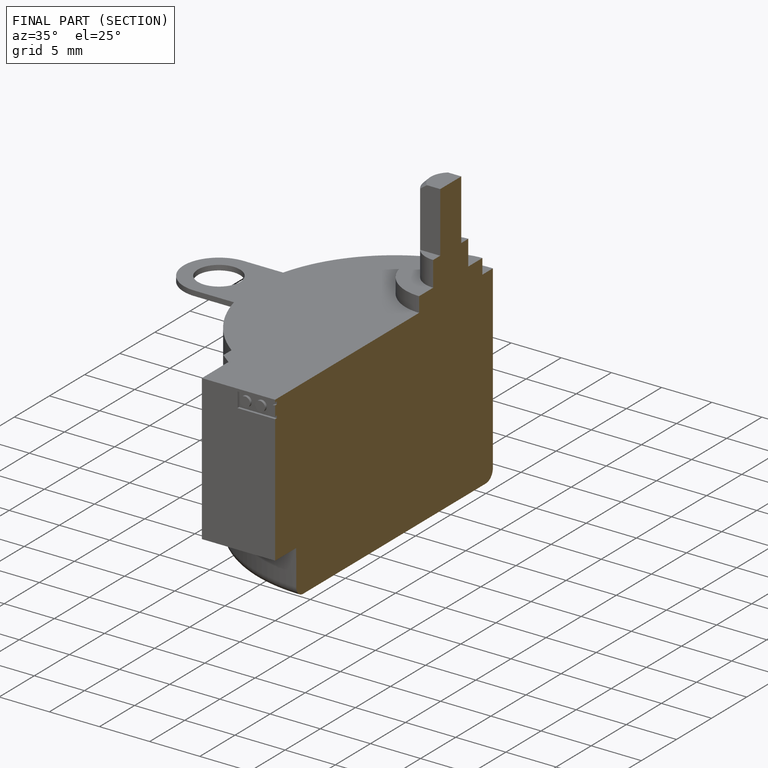
[diagram: finished part — half-section view (interior)]
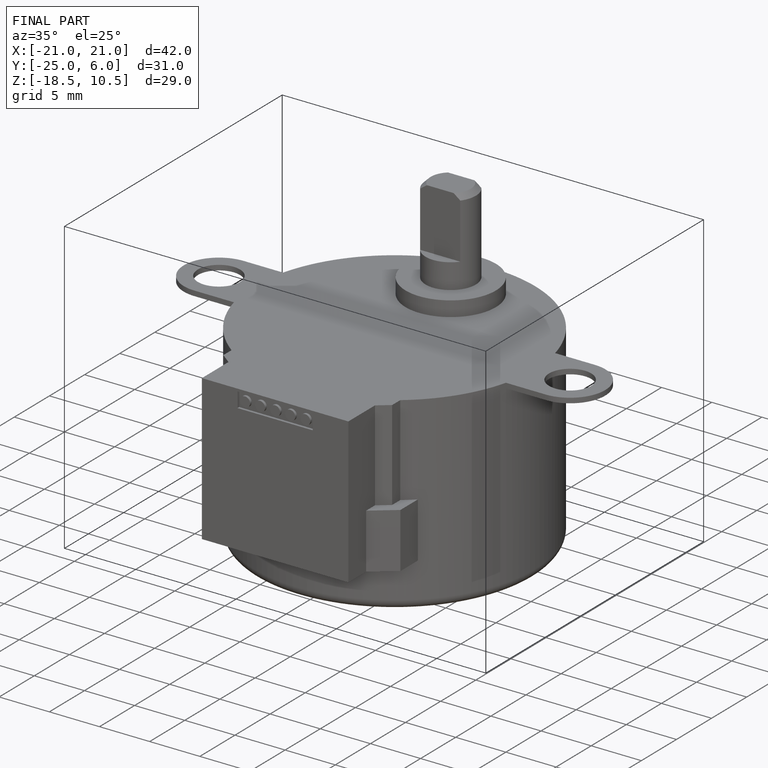
[diagram: finished part — iso view with bounding-box wireframe]
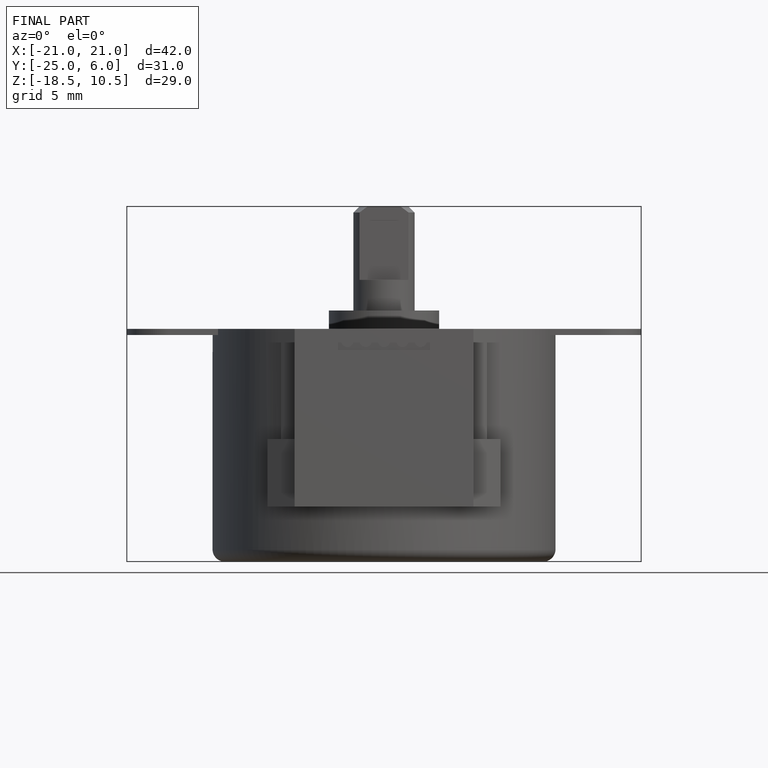
[diagram: finished part — front view with bounding-box wireframe]
